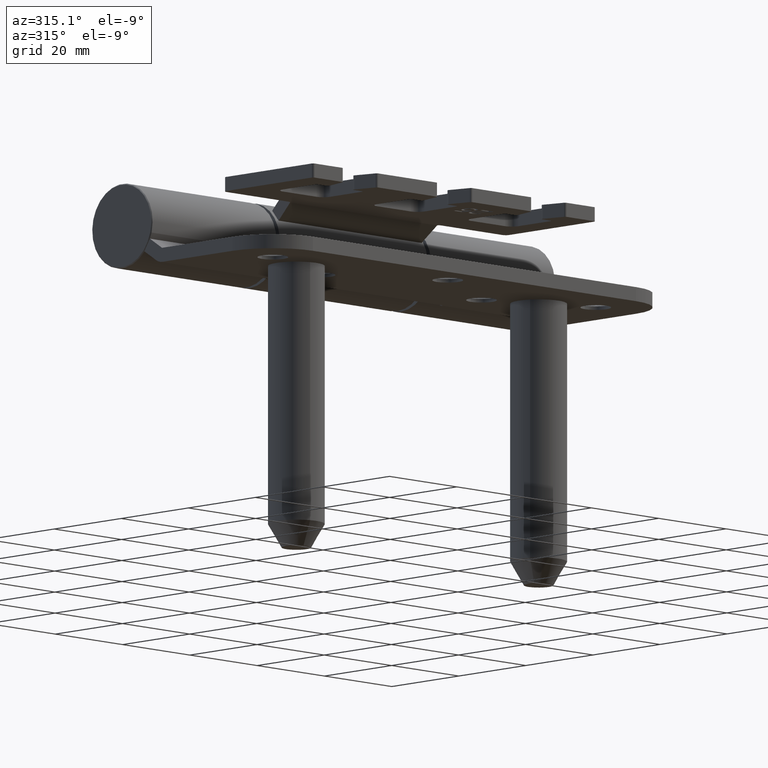
[diagram: clean part render]
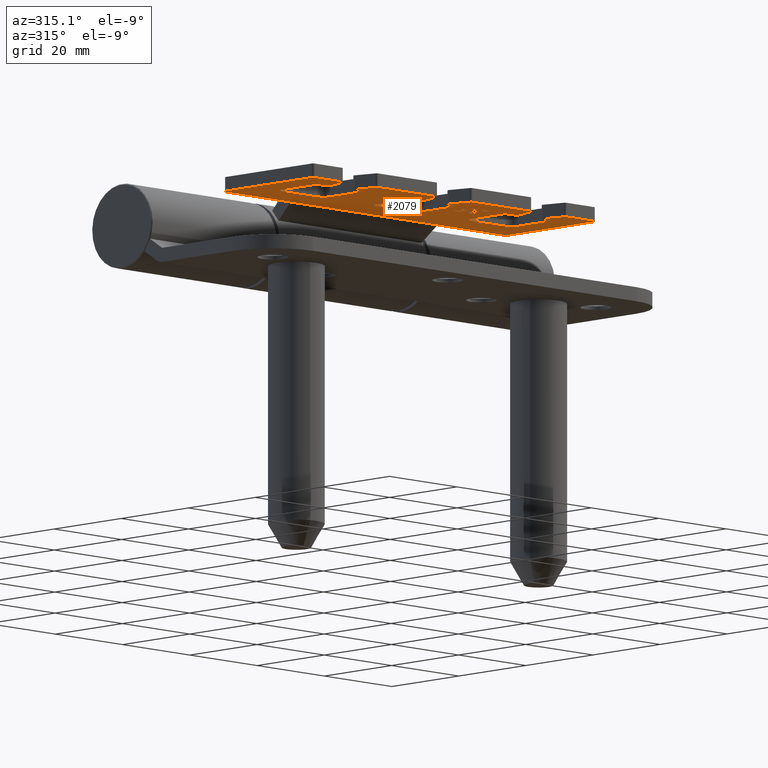
[diagram: same view with one face highlighted and labeled with its STEP entity id]
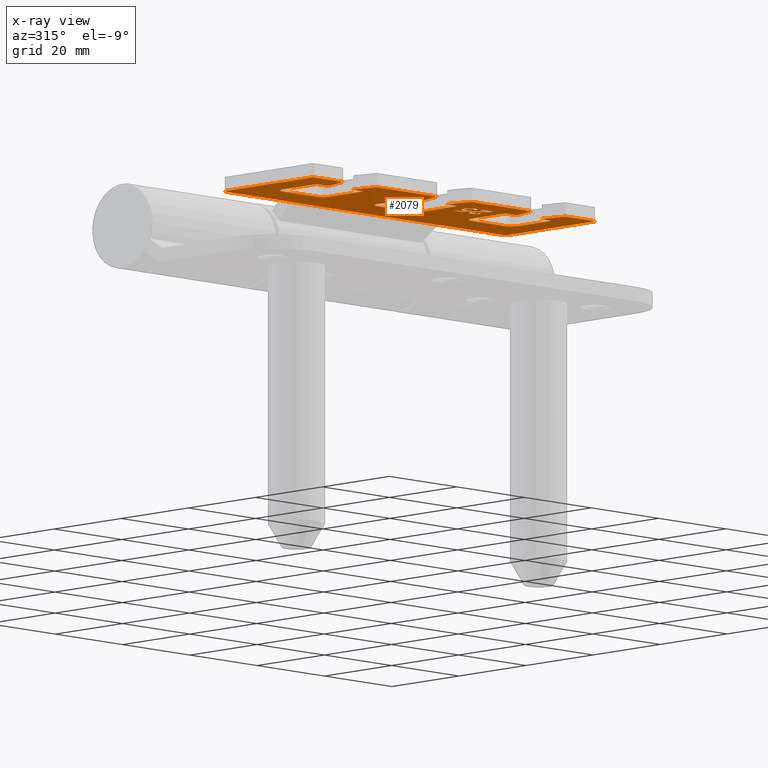
[diagram: x-ray of the same camera — body ghosted, the highlighted face saturated]
A machine part, auxiliary view. The second image highlights one B-rep face of the part: STEP entity #2079.
The next image is the same camera in x-ray: the body ghosted, the highlighted face saturated — about 0% of this face is hidden behind the body in this view.
In plain terms, the highlighted planar face has unit normal (-0, 0, -1).
Its self-contained STEP definition (entity closure, byte-faithful):
#13 = EDGE_CURVE ( 'NONE', #3798, #17745, #6001, .T. ) ;
#21 = CARTESIAN_POINT ( 'NONE',  ( -29.47435897435896700, -7.999999999999998200, -16.94871794871793100 ) ) ;
#29 = EDGE_CURVE ( 'NONE', #1265, #11754, #11586, .T. ) ;
#36 = CARTESIAN_POINT ( 'NONE',  ( -30.41276396107699400, -7.999999999999998200, -15.64334872614905200 ) ) ;
#45 = DIRECTION ( 'NONE',  ( 0.09950371902100291200, 0.0000000000000000000, 0.9950371902099887100 ) ) ;
#52 = VECTOR ( 'NONE', #16476, 1000.000000000000000 ) ;
#62 = ORIENTED_EDGE ( 'NONE', *, *, #16048, .F. ) ;
#89 = AXIS2_PLACEMENT_3D ( 'NONE', #14287, #14037, #16892 ) ;
#99 = CARTESIAN_POINT ( 'NONE',  ( -30.19293630423625900, -7.999999999999996400, -15.44009011978449300 ) ) ;
#120 = VERTEX_POINT ( 'NONE', #17749 ) ;
#128 = CARTESIAN_POINT ( 'NONE',  ( -29.85323912002101900, -8.000000000000000000, -12.61997240337114700 ) ) ;
#134 = CARTESIAN_POINT ( 'NONE',  ( -28.75803294109141800, -7.999999999999998200, -16.62142796201532500 ) ) ;
#161 = EDGE_CURVE ( 'NONE', #4018, #8008, #8801, .T. ) ;
#193 = CARTESIAN_POINT ( 'NONE',  ( -30.24470424939988400, -7.999999999999996400, -12.07890063599212000 ) ) ;
#232 = CARTESIAN_POINT ( 'NONE',  ( -32.55528846153846000, -8.000000000000000000, -17.58673878205127000 ) ) ;
#244 = AXIS2_PLACEMENT_3D ( 'NONE', #17239, #9023, #10409 ) ;
#255 = CARTESIAN_POINT ( 'NONE',  ( -31.28255715871698700, -8.000000000000000000, -11.11612048247084600 ) ) ;
#275 = CARTESIAN_POINT ( 'NONE',  ( -29.82268380148822800, -7.999999999999996400, -15.19554859725371200 ) ) ;
#317 = CARTESIAN_POINT ( 'NONE',  ( -29.37357390280477500, -7.999999999999998200, -16.94521136761745700 ) ) ;
#343 = CARTESIAN_POINT ( 'NONE',  ( -29.38020833333333200, -8.000000000000000000, -14.44871794871793600 ) ) ;
#345 = CARTESIAN_POINT ( 'NONE',  ( -21.35294117647065400, -8.000000000000001800, 27.41176470588234100 ) ) ;
#379 = CARTESIAN_POINT ( 'NONE',  ( -28.66863022414434800, -7.999999999999996400, -16.47004467049641000 ) ) ;
#381 = CARTESIAN_POINT ( 'NONE',  ( -30.78030005418602900, -7.999999999999996400, -11.21263284888995700 ) ) ;
#383 = AXIS2_PLACEMENT_3D ( 'NONE', #7658, #3591, #13186 ) ;
#401 = VERTEX_POINT ( 'NONE', #10728 ) ;
#409 = DIRECTION ( 'NONE',  ( -0.0000000000000000000, -1.000000000000000000, -1.402666919856384600E-045 ) ) ;
#421 = CARTESIAN_POINT ( 'NONE',  ( -28.36006733496736800, -8.000000000000001800, -17.10918942818107900 ) ) ;
#424 = CARTESIAN_POINT ( 'NONE',  ( -28.75458690455984400, -7.999999999999998200, -15.40604548773712600 ) ) ;
#437 = CARTESIAN_POINT ( 'NONE',  ( -30.36143851533694600, -7.999999999999996400, -10.71157451280752000 ) ) ;
#462 = LINE ( 'NONE', #9231, #1967 ) ;
#486 = CARTESIAN_POINT ( 'NONE',  ( -31.28525641025640200, -7.999999999999998200, -10.47435897435895700 ) ) ;
#538 = ORIENTED_EDGE ( 'NONE', *, *, #2837, .T. ) ;
#543 = CARTESIAN_POINT ( 'NONE',  ( -32.48445775863236700, -7.999999999999998200, -12.00935439888613800 ) ) ;
#560 = ORIENTED_EDGE ( 'NONE', *, *, #2261, .F. ) ;
#569 = CIRCLE ( 'NONE', #3681, 0.5000000000000004400 ) ;
#599 = CARTESIAN_POINT ( 'NONE',  ( -31.68785508642259100, -7.999999999999996400, -11.15173141657995800 ) ) ;
#602 = CARTESIAN_POINT ( 'NONE',  ( -29.42969337469607200, -8.000000000000000000, -14.45006984022967700 ) ) ;
#613 = CARTESIAN_POINT ( 'NONE',  ( -29.66666666666666400, -8.000000000000000000, -11.94170673076921400 ) ) ;
#617 = CARTESIAN_POINT ( 'NONE',  ( -32.35897435897435800, -7.999999999999998200, -16.83052884615383200 ) ) ;
#651 = CARTESIAN_POINT ( 'NONE',  ( -33.62126781251815500, -7.999999999999998200, 3.655316953129549100 ) ) ;
#661 = CARTESIAN_POINT ( 'NONE',  ( -31.99652079988486600, -8.000000000000001800, -11.26470207285920300 ) ) ;
#663 = CARTESIAN_POINT ( 'NONE',  ( -31.30329295722367900, -8.000000000000000000, -15.68578537311858600 ) ) ;
#677 = CARTESIAN_POINT ( 'NONE',  ( -12.18030679136777300, -7.999999999999998200, 22.89199802964732600 ) ) ;
#687 = B_SPLINE_CURVE_WITH_KNOTS ( 'NONE', 3,
 ( #909, #14535, #10270, #790, #15792, #2226, #17155 ),
 .UNSPECIFIED., .F., .F.,
 ( 4, 1, 1, 1, 4 ),
 ( 0.0000000000000000000, 0.2526433275832421500, 0.5044398525799811400, 0.7504068042814622300, 1.000000000000000000 ),
 .UNSPECIFIED. ) ;
#696 = CARTESIAN_POINT ( 'NONE',  ( -32.49999999999997900, -7.999999999999998200, 21.00000000000001800 ) ) ;
#710 = ORIENTED_EDGE ( 'NONE', *, *, #4060, .T. ) ;
#730 = DIRECTION ( 'NONE',  ( 0.9701425001453322100, 0.0000000000000000000, -0.2425356250363319400 ) ) ;
#746 = ORIENTED_EDGE ( 'NONE', *, *, #13016, .T. ) ;
#752 = CARTESIAN_POINT ( 'NONE',  ( -32.99999999999999300, -7.999999999999998200, -23.85961179679777500 ) ) ;
#772 = ORIENTED_EDGE ( 'NONE', *, *, #11048, .T. ) ;
#785 = CARTESIAN_POINT ( 'NONE',  ( -28.06410256410255900, -7.999999999999998200, -13.10256410256408400 ) ) ;
#790 = CARTESIAN_POINT ( 'NONE',  ( -32.77333376119280900, -7.999999999999998200, -17.64117475120493200 ) ) ;
#798 = CARTESIAN_POINT ( 'NONE',  ( -31.46714295190265900, -7.999999999999996400, -15.87973245772782800 ) ) ;
#810 = EDGE_CURVE ( 'NONE', #12451, #5811, #17076, .T. ) ;
#821 = CARTESIAN_POINT ( 'NONE',  ( -31.65384615384615000, -7.999999999999998200, -13.67948717948715900 ) ) ;
#834 = ORIENTED_EDGE ( 'NONE', *, *, #5228, .F. ) ;
#846 = CARTESIAN_POINT ( 'NONE',  ( -32.99999999999999300, -7.999999999999998200, 6.500000000000005300 ) ) ;
#857 = DIRECTION ( 'NONE',  ( 0.0000000000000000000, 1.000000000000000000, 1.402666919856384600E-045 ) ) ;
#903 = ORIENTED_EDGE ( 'NONE', *, *, #810, .T. ) ;
#909 = CARTESIAN_POINT ( 'NONE',  ( -32.99999999999999300, -7.999999999999998200, -17.65384615384613900 ) ) ;
#926 = DIRECTION ( 'NONE',  ( 0.0000000000000000000, 0.0000000000000000000, 1.000000000000000000 ) ) ;
#961 = DIRECTION ( 'NONE',  ( 1.000000000000000000, 0.0000000000000000000, 1.026341648675405700E-048 ) ) ;
#980 = VERTEX_POINT ( 'NONE', #8086 ) ;
#996 = CIRCLE ( 'NONE', #10599, 0.5000000000000004400 ) ;
#1007 = CARTESIAN_POINT ( 'NONE',  ( -33.49999999999998600, -7.999999999999998200, 32.14038820320222800 ) ) ;
#1024 = DIRECTION ( 'NONE',  ( 0.0000000000000000000, 0.0000000000000000000, 1.000000000000000000 ) ) ;
#1040 = VERTEX_POINT ( 'NONE', #6765 ) ;
#1048 = CARTESIAN_POINT ( 'NONE',  ( -13.18030679136777600, -7.999999999999998200, 41.00000000000000000 ) ) ;
#1099 = CARTESIAN_POINT ( 'NONE',  ( -29.09924347804939900, -8.000000000000000000, -14.47282667948791300 ) ) ;
#1117 = CARTESIAN_POINT ( 'NONE',  ( -31.43149038461538000, -7.999999999999998200, -15.83593749999998400 ) ) ;
#1120 = CARTESIAN_POINT ( 'NONE',  ( -30.24358974358974100, -7.999999999999998200, -12.11899038461536500 ) ) ;
#1121 = DIRECTION ( 'NONE',  ( 1.000000000000000000, 0.0000000000000000000, 1.026341648675405900E-048 ) ) ;
#1135 = DIRECTION ( 'NONE',  ( -0.0000000000000000000, -1.000000000000000000, -1.402666919856384600E-045 ) ) ;
#1142 = CARTESIAN_POINT ( 'NONE',  ( -32.49999999999998600, -7.999999999999998200, 35.00000000000001400 ) ) ;
#1154 = VECTOR ( 'NONE', #6486, 999.9999999999998900 ) ;
#1172 = CIRCLE ( 'NONE', #244, 1.999999999999994900 ) ;
#1176 = CARTESIAN_POINT ( 'NONE',  ( -30.69230769230768600, -7.999999999999998200, -12.97435897435895700 ) ) ;
#1180 = AXIS2_PLACEMENT_3D ( 'NONE', #5499, #6784, #2838 ) ;
#1208 = EDGE_CURVE ( 'NONE', #9519, #17745, #17286, .T. ) ;
#1222 = CARTESIAN_POINT ( 'NONE',  ( -39.00000000000000000, -7.999999999999998200, -34.99999999999998600 ) ) ;
#1265 = VERTEX_POINT ( 'NONE', #12693 ) ;
#1273 = DIRECTION ( 'NONE',  ( 0.0000000000000000000, 1.000000000000000000, 1.402666919856384600E-045 ) ) ;
#1337 = CARTESIAN_POINT ( 'NONE',  ( -32.72446536705295700, -8.000000000000000000, -11.10728588093941800 ) ) ;
#1358 = EDGE_CURVE ( 'NONE', #17001, #7517, #17265, .T. ) ;
#1361 = VECTOR ( 'NONE', #6908, 1000.000000000000000 ) ;
#1373 = DIRECTION ( 'NONE',  ( 0.0000000000000000000, 1.000000000000000000, 1.402666919856384600E-045 ) ) ;
#1397 = CARTESIAN_POINT ( 'NONE',  ( -33.06410256410256200, -7.999999999999996400, -12.12600160256408400 ) ) ;
#1524 = AXIS2_PLACEMENT_3D ( 'NONE', #9422, #1373, #6700 ) ;
#1530 = CARTESIAN_POINT ( 'NONE',  ( -31.08761256005970700, -7.999999999999996400, -11.12962077480178100 ) ) ;
#1539 = CARTESIAN_POINT ( 'NONE',  ( -28.57692307692307300, -7.999999999999998200, -16.00120192307690600 ) ) ;
#1574 = CARTESIAN_POINT ( 'NONE',  ( -38.99999999999998600, -7.999999999999998200, 35.00000000000001400 ) ) ;
#1576 = CARTESIAN_POINT ( 'NONE',  ( -29.14460104414312300, -7.999999999999996400, -15.12279673580849200 ) ) ;
#1591 = CARTESIAN_POINT ( 'NONE',  ( -31.80789038131200300, -8.000000000000000000, -13.66238168176661500 ) ) ;
#1650 = DIRECTION ( 'NONE',  ( 0.0000000000000000000, 0.0000000000000000000, 1.000000000000000000 ) ) ;
#1655 = ORIENTED_EDGE ( 'NONE', *, *, #10157, .F. ) ;
#1657 = CARTESIAN_POINT ( 'NONE',  ( -28.57772268288900000, -7.999999999999998200, -16.03595631785517700 ) ) ;
#1678 = CARTESIAN_POINT ( 'NONE',  ( -29.55854590726929100, -7.999999999999998200, -15.10591191174414900 ) ) ;
#1716 = DIRECTION ( 'NONE',  ( 0.0000000000000000000, 0.0000000000000000000, 1.000000000000000000 ) ) ;
#1749 = EDGE_CURVE ( 'NONE', #8008, #14146, #11559, .T. ) ;
#1759 = CARTESIAN_POINT ( 'NONE',  ( -28.20123852969946700, -7.999999999999998200, -16.88209855984302600 ) ) ;
#1763 = CARTESIAN_POINT ( 'NONE',  ( -29.38020833333333200, -8.000000000000000000, -14.44871794871793600 ) ) ;
#1774 = CARTESIAN_POINT ( 'NONE',  ( -30.11900871611295100, -7.999999999999996400, -10.89696490905011900 ) ) ;
#1776 = CARTESIAN_POINT ( 'NONE',  ( -30.53201698947346500, -8.000000000000000000, -11.36715265043242900 ) ) ;
#1790 = CARTESIAN_POINT ( 'NONE',  ( -33.49999999999999300, -7.999999999999998200, -32.14038820320218500 ) ) ;
#1815 = ORIENTED_EDGE ( 'NONE', *, *, #11544, .F. ) ;
#1818 = CARTESIAN_POINT ( 'NONE',  ( -28.70833313155819900, -7.999999999999998200, -15.47802468616766600 ) ) ;
#1830 = CARTESIAN_POINT ( 'NONE',  ( -33.49999999999999300, -7.999999999999998200, -4.140388203202184600 ) ) ;
#1844 = CARTESIAN_POINT ( 'NONE',  ( -38.50000000000000000, -8.000000000000001800, 42.00000000000000000 ) ) ;
#1847 = ORIENTED_EDGE ( 'NONE', *, *, #16346, .T. ) ;
#1874 = CARTESIAN_POINT ( 'NONE',  ( -28.45456909811033300, -7.999999999999996400, -17.20901120485546100 ) ) ;
#1888 = CARTESIAN_POINT ( 'NONE',  ( -31.11343962867247400, -7.999999999999998200, -10.47832277126347300 ) ) ;
#1935 = CARTESIAN_POINT ( 'NONE',  ( -20.99999999999999600, -7.999999999999998200, -4.999999999999992900 ) ) ;
#1954 = VECTOR ( 'NONE', #2485, 1000.000000000000000 ) ;
#1963 = VERTEX_POINT ( 'NONE', #6509 ) ;
#1967 = VECTOR ( 'NONE', #11979, 1000.000000000000000 ) ;
#1971 = DIRECTION ( 'NONE',  ( 8.673617379884034200E-017, 2.736911063134408300E-048, 1.000000000000000000 ) ) ;
#1983 = ORIENTED_EDGE ( 'NONE', *, *, #13963, .T. ) ;
#1991 = CARTESIAN_POINT ( 'NONE',  ( -32.30866916435543600, -8.000000000000000000, -11.52988496455677000 ) ) ;
#1994 = CARTESIAN_POINT ( 'NONE',  ( -29.52877266250523300, -8.000000000000003600, -14.45277660664817200 ) ) ;
#2005 = CARTESIAN_POINT ( 'NONE',  ( -30.94692888850672600, -7.999999999999998200, -10.49900557415207000 ) ) ;
#2006 = CARTESIAN_POINT ( 'NONE',  ( -38.50000000000000000, -8.000000000000001800, -33.39038820320219300 ) ) ;
#2009 = CARTESIAN_POINT ( 'NONE',  ( -30.24358974358974100, -7.999999999999998200, -12.11899038461536500 ) ) ;
#2058 = CARTESIAN_POINT ( 'NONE',  ( -32.24505376507862300, -7.999999999999998200, -11.45161766620974200 ) ) ;
#2079 = ADVANCED_FACE ( 'NONE', ( #2681, #13164, #8228 ), #2761, .T. ) ;
#2092 = B_SPLINE_CURVE_WITH_KNOTS ( 'NONE', 3,
 ( #14130, #5888, #12841, #8647, #4490, #7268, #3371, #11522, #11403, #7441, #15561 ),
 .UNSPECIFIED., .F., .F.,
 ( 4, 1, 1, 1, 1, 1, 1, 1, 4 ),
 ( 0.0000000000000000000, 0.1324702944791600900, 0.2616666311771870800, 0.3875720710229662600, 0.5110290449571821500, 0.6326513119273601300, 0.7546442917994753400, 0.8765146957733891400, 0.9999999999999998900 ),
 .UNSPECIFIED. ) ;
#2138 = EDGE_CURVE ( 'NONE', #3092, #2519, #15954, .T. ) ;
#2165 = B_SPLINE_CURVE_WITH_KNOTS ( 'NONE', 3,
 ( #16848, #7190, #16610, #3063, #1576, #8393, #8632, #12646, #15246, #15307, #424, #1818, #7250, #9894, #10013, #11279, #12529, #8574, #4299 ),
 .UNSPECIFIED., .F., .F.,
 ( 4, 1, 1, 1, 1, 1, 1, 1, 1, 1, 1, 1, 1, 1, 1, 1, 4 ),
 ( 0.0000000000000000000, 0.06176375901380547200, 0.1211771361726256700, 0.1794260614099178200, 0.2368495788881553600, 0.2943294307659544100, 0.3532001253423287000, 0.4127314132961738500, 0.4745344608485064800, 0.5370706765713612100, 0.5996068922942169300, 0.6623841626057254100, 0.7259427899166660500, 0.7903110064740479500, 0.8577206100105787500, 0.9272300646158239100, 1.000000000000000000 ),
 .UNSPECIFIED. ) ;
#2169 = CARTESIAN_POINT ( 'NONE',  ( -38.50000000000000000, -8.000000000000001800, 22.60961179679782200 ) ) ;
#2178 = VECTOR ( 'NONE', #9141, 1000.000000000000000 ) ;
#2186 = DIRECTION ( 'NONE',  ( -0.9812462574000521100, 0.0000000000000000000, -0.1927583521884092500 ) ) ;
#2213 = DIRECTION ( 'NONE',  ( -0.9701425001453322100, 3.944304526105058600E-031, -0.2425356250363319400 ) ) ;
#2226 = CARTESIAN_POINT ( 'NONE',  ( -32.59114130599011400, -8.000000000000000000, -17.59821967954060500 ) ) ;
#2261 = EDGE_CURVE ( 'NONE', #2501, #9931, #9987, .T. ) ;
#2282 = VERTEX_POINT ( 'NONE', #15949 ) ;
#2297 = VERTEX_POINT ( 'NONE', #14215 ) ;
#2300 = LINE ( 'NONE', #10108, #14770 ) ;
#2344 = CARTESIAN_POINT ( 'NONE',  ( -39.00000000000000000, -7.999999999999998200, 42.00000000000000000 ) ) ;
#2366 = VERTEX_POINT ( 'NONE', #17434 ) ;
#2436 = CARTESIAN_POINT ( 'NONE',  ( -38.50000000000000000, -8.000000000000001800, -41.50000000000000000 ) ) ;
#2442 = VERTEX_POINT ( 'NONE', #16465 ) ;
#2459 = VERTEX_POINT ( 'NONE', #8246 ) ;
#2485 = DIRECTION ( 'NONE',  ( 1.026341648675172500E-048, 1.401298464324817100E-045, 1.000000000000000000 ) ) ;
#2491 = DIRECTION ( 'NONE',  ( 1.026341648675172500E-048, 1.401298464324817100E-045, 1.000000000000000000 ) ) ;
#2501 = VERTEX_POINT ( 'NONE', #16355 ) ;
#2519 = VERTEX_POINT ( 'NONE', #9568 ) ;
#2532 = DIRECTION ( 'NONE',  ( -2.877826455228648000E-093, 1.000000000000000000, -1.401298464324817100E-045 ) ) ;
#2564 = VERTEX_POINT ( 'NONE', #7150 ) ;
#2570 = CARTESIAN_POINT ( 'NONE',  ( -30.24796574974073600, -7.999999999999996400, -12.26474656507636100 ) ) ;
#2579 = LINE ( 'NONE', #1222, #13505 ) ;
#2581 = LINE ( 'NONE', #4250, #16088 ) ;
#2583 = EDGE_CURVE ( 'NONE', #6203, #2920, #14041, .T. ) ;
#2598 = VECTOR ( 'NONE', #17685, 1000.000000000000000 ) ;
#2613 = EDGE_CURVE ( 'NONE', #11399, #2442, #6501, .T. ) ;
#2625 = CARTESIAN_POINT ( 'NONE',  ( -30.30961232528547800, -7.999999999999996400, -12.52711703789202100 ) ) ;
#2657 = CARTESIAN_POINT ( 'NONE',  ( -32.99999999999999300, -7.999999999999998200, -14.38461538461536900 ) ) ;
#2681 = FACE_OUTER_BOUND ( 'NONE', #13780, .T. ) ;
#2693 = VERTEX_POINT ( 'NONE', #16995 ) ;
#2696 = VECTOR ( 'NONE', #7526, 1000.000000000000000 ) ;
#2759 = DIRECTION ( 'NONE',  ( -1.026341648675172500E-048, -1.401298464324817100E-045, -1.000000000000000000 ) ) ;
#2761 = PLANE ( 'NONE',  #6543 ) ;
#2787 = VERTEX_POINT ( 'NONE', #15869 ) ;
#2788 = AXIS2_PLACEMENT_3D ( 'NONE', #3426, #6119, #14249 ) ;
#2802 = CARTESIAN_POINT ( 'NONE',  ( -32.13581723205725600, -8.000000000000000000, -12.84632787830276800 ) ) ;
#2809 = EDGE_CURVE ( 'NONE', #16756, #14850, #10153, .T. ) ;
#2812 = LINE ( 'NONE', #13611, #5794 ) ;
#2816 = CARTESIAN_POINT ( 'NONE',  ( -30.97158825379240800, -7.999999999999998200, -16.24567655875546300 ) ) ;
#2824 = ORIENTED_EDGE ( 'NONE', *, *, #12153, .T. ) ;
#2837 = EDGE_CURVE ( 'NONE', #13697, #15855, #4985, .T. ) ;
#2838 = DIRECTION ( 'NONE',  ( 0.0000000000000000000, 0.0000000000000000000, 1.000000000000000000 ) ) ;
#2853 = CARTESIAN_POINT ( 'NONE',  ( -32.06112363942173000, -7.999999999999998200, -12.89054501359466400 ) ) ;
#2872 = CARTESIAN_POINT ( 'NONE',  ( -30.29760513007655800, -7.999999999999998200, -15.53406536949836100 ) ) ;
#2899 = CARTESIAN_POINT ( 'NONE',  ( -29.68640152829888400, -8.000000000000000000, -12.17296478569369700 ) ) ;
#2904 = CARTESIAN_POINT ( 'NONE',  ( -33.06301101071603200, -8.000000000000000000, -12.17980866830898600 ) ) ;
#2914 = CARTESIAN_POINT ( 'NONE',  ( -30.59565812191139900, -8.000000000000001800, -12.90790451793925100 ) ) ;
#2920 = VERTEX_POINT ( 'NONE', #6470 ) ;
#2935 = EDGE_CURVE ( 'NONE', #5078, #3687, #8480, .T. ) ;
#2961 = CARTESIAN_POINT ( 'NONE',  ( -28.57692307692307300, -7.999999999999998200, -16.00120192307690600 ) ) ;
#2989 = DIRECTION ( 'NONE',  ( 0.0000000000000000000, 1.000000000000000000, 1.402666919856384600E-045 ) ) ;
#3023 = EDGE_CURVE ( 'NONE', #16376, #120, #7531, .T. ) ;
#3026 = CARTESIAN_POINT ( 'NONE',  ( -28.59063825161517200, -7.999999999999996400, -16.20340648106709800 ) ) ;
#3058 = CARTESIAN_POINT ( 'NONE',  ( -32.20501435377103400, -8.000000000000000000, -17.43501014874914300 ) ) ;
#3063 = CARTESIAN_POINT ( 'NONE',  ( -29.22230198453506100, -8.000000000000000000, -15.10476103859743800 ) ) ;
#3081 = CARTESIAN_POINT ( 'NONE',  ( -29.47435897435896700, -7.999999999999998200, -16.94871794871793100 ) ) ;
#3082 = CARTESIAN_POINT ( 'NONE',  ( -30.69056082817639500, -8.000000000000000000, -11.25569878296097800 ) ) ;
#3092 = VERTEX_POINT ( 'NONE', #6779 ) ;
#3124 = DIRECTION ( 'NONE',  ( -0.9701425001453322100, 3.944304526105058600E-031, -0.2425356250363319400 ) ) ;
#3149 = CARTESIAN_POINT ( 'NONE',  ( -33.49999999999999300, -7.999999999999998200, -32.14038820320218500 ) ) ;
#3152 = CARTESIAN_POINT ( 'NONE',  ( -38.50000000000000000, -8.000000000000001800, 41.50000000000000000 ) ) ;
#3192 = EDGE_CURVE ( 'NONE', #2519, #4121, #2165, .T. ) ;
#3193 = DIRECTION ( 'NONE',  ( 0.0000000000000000000, 1.000000000000000000, 1.402666919856384600E-045 ) ) ;
#3197 = AXIS2_PLACEMENT_3D ( 'NONE', #10462, #15938, #17420 ) ;
#3206 = DIRECTION ( 'NONE',  ( 0.0000000000000000000, 1.000000000000000000, 1.402666919856384600E-045 ) ) ;
#3235 = CARTESIAN_POINT ( 'NONE',  ( -28.04854958775312200, -7.999999999999998200, -16.47334232017195900 ) ) ;
#3238 = CARTESIAN_POINT ( 'NONE',  ( -31.90010266152053100, -8.000000000000000000, -11.21884550673490600 ) ) ;
#3316 = CARTESIAN_POINT ( 'NONE',  ( -31.63369606312316100, -7.999999999999998200, -16.08204269445497300 ) ) ;
#3318 = CARTESIAN_POINT ( 'NONE',  ( -28.09617778054332900, -8.000000000000000000, -15.35158758611159900 ) ) ;
#3321 = CARTESIAN_POINT ( 'NONE',  ( -39.00000000000000000, -7.999999999999998200, 41.50000000000000000 ) ) ;
#3356 = EDGE_CURVE ( 'NONE', #16883, #6480, #15163, .T. ) ;
#3358 = CARTESIAN_POINT ( 'NONE',  ( -31.79740964023130400, -8.000000000000000000, -11.18023929019309300 ) ) ;
#3371 = CARTESIAN_POINT ( 'NONE',  ( -32.06166252031233900, -7.999999999999996400, -10.62127213933985500 ) ) ;
#3394 = ORIENTED_EDGE ( 'NONE', *, *, #4611, .T. ) ;
#3395 = EDGE_CURVE ( 'NONE', #14146, #5593, #10313, .T. ) ;
#3399 = EDGE_CURVE ( 'NONE', #13813, #6612, #996, .T. ) ;
#3400 = DIRECTION ( 'NONE',  ( 1.026341648675172500E-048, 1.401298464324817100E-045, 1.000000000000000000 ) ) ;
#3419 = CARTESIAN_POINT ( 'NONE',  ( -32.45713141025640900, -7.999999999999998200, -10.85697115384613600 ) ) ;
#3426 = CARTESIAN_POINT ( 'NONE',  ( -22.99999999999998900, -8.000000000000001800, -32.99999999999999300 ) ) ;
#3432 = CIRCLE ( 'NONE', #16719, 0.5000000000000004400 ) ;
#3459 = CARTESIAN_POINT ( 'NONE',  ( -32.49999999999999300, -7.999999999999998200, -6.999999999999982200 ) ) ;
#3484 = CARTESIAN_POINT ( 'NONE',  ( -31.87487822887655000, -8.000000000000000000, -16.36806709264784500 ) ) ;
#3512 = CARTESIAN_POINT ( 'NONE',  ( -12.18030679136777500, -7.999999999999998200, 42.00000000000000000 ) ) ;
#3562 = B_SPLINE_CURVE_WITH_KNOTS ( 'NONE', 3,
 ( #232, #4526, #13935, #3058, #12702, #14047, #5924, #12520, #15302, #4292, #16661, #9829, #12583, #4698, #4641 ),
 .UNSPECIFIED., .F., .F.,
 ( 4, 1, 1, 1, 1, 1, 1, 1, 1, 1, 1, 1, 4 ),
 ( 0.0000000000000000000, 0.1003958053692366500, 0.2044223945985638200, 0.3109890257635843900, 0.4224687447083747000, 0.4810013788192103500, 0.5432032916293425600, 0.6094696992077599500, 0.6795301504461721500, 0.7538224337262109400, 0.8316278262887669700, 0.9138061284747212000, 1.000000000000000000 ),
 .UNSPECIFIED. ) ;
#3569 = EDGE_LOOP ( 'NONE', ( #14999, #9770, #17436, #13332, #8638, #16815, #5115, #15658, #16777, #4574, #15099, #746, #12977 ) ) ;
#3591 = DIRECTION ( 'NONE',  ( 0.0000000000000000000, 1.000000000000000000, 1.402666919856384600E-045 ) ) ;
#3614 = CARTESIAN_POINT ( 'NONE',  ( -38.99999999999999300, -7.999999999999998200, 33.39038820320222800 ) ) ;
#3622 = DIRECTION ( 'NONE',  ( 0.0000000000000000000, 1.000000000000000000, 1.402666919856384600E-045 ) ) ;
#3650 = VECTOR ( 'NONE', #45, 1000.000000000000200 ) ;
#3654 = VERTEX_POINT ( 'NONE', #17684 ) ;
#3662 = CARTESIAN_POINT ( 'NONE',  ( -28.30147476740653500, -7.999999999999998200, -14.96866095345992100 ) ) ;
#3677 = AXIS2_PLACEMENT_3D ( 'NONE', #7216, #3206, #8658 ) ;
#3681 = AXIS2_PLACEMENT_3D ( 'NONE', #13199, #857, #14661 ) ;
#3687 = VERTEX_POINT ( 'NONE', #16579 ) ;
#3709 = EDGE_CURVE ( 'NONE', #15774, #15659, #4582, .T. ) ;
#3760 = EDGE_CURVE ( 'NONE', #4097, #6203, #6092, .T. ) ;
#3761 = ORIENTED_EDGE ( 'NONE', *, *, #16500, .F. ) ;
#3783 = VERTEX_POINT ( 'NONE', #14214 ) ;
#3798 = VERTEX_POINT ( 'NONE', #11372 ) ;
#3808 = ORIENTED_EDGE ( 'NONE', *, *, #7858, .T. ) ;
#3848 = DIRECTION ( 'NONE',  ( 1.026341648675172500E-048, 1.401298464324817100E-045, 1.000000000000000000 ) ) ;
#3864 = EDGE_CURVE ( 'NONE', #16883, #15998, #5878, .T. ) ;
#3912 = CARTESIAN_POINT ( 'NONE',  ( -30.24508613076977800, -7.999999999999998200, -12.16883210611353400 ) ) ;
#4018 = VERTEX_POINT ( 'NONE', #821 ) ;
#4027 = CARTESIAN_POINT ( 'NONE',  ( -39.00000000000000000, -7.999999999999998200, 42.00000000000000000 ) ) ;
#4039 = CARTESIAN_POINT ( 'NONE',  ( -38.50000000000000000, -8.000000000000001800, -5.390388203202173000 ) ) ;
#4060 = EDGE_CURVE ( 'NONE', #15525, #3654, #10664, .T. ) ;
#4063 = DIRECTION ( 'NONE',  ( 1.000000000000000000, 0.0000000000000000000, 1.026341648675405900E-048 ) ) ;
#4076 = DIRECTION ( 'NONE',  ( -1.000000000000000000, -0.0000000000000000000, -1.026341648675405900E-048 ) ) ;
#4078 = CARTESIAN_POINT ( 'NONE',  ( -29.79605147277794700, -7.999999999999998200, -12.51026739070580600 ) ) ;
#4097 = VERTEX_POINT ( 'NONE', #5702 ) ;
#4111 = CARTESIAN_POINT ( 'NONE',  ( -20.99999999999999600, -7.999999999999998200, -22.99999999999998600 ) ) ;
#4121 = VERTEX_POINT ( 'NONE', #1539 ) ;
#4157 = VERTEX_POINT ( 'NONE', #1844 ) ;
#4163 = VECTOR ( 'NONE', #2759, 1000.000000000000000 ) ;
#4181 = LINE ( 'NONE', #8686, #11059 ) ;
#4196 = VERTEX_POINT ( 'NONE', #11469 ) ;
#4198 = CIRCLE ( 'NONE', #2788, 1.999999999999994900 ) ;
#4205 = CARTESIAN_POINT ( 'NONE',  ( -30.31337409107001000, -7.999999999999998200, -11.68347916527712000 ) ) ;
#4210 = CARTESIAN_POINT ( 'NONE',  ( -31.98037429073006500, -8.000000000000000000, -12.93135424035053300 ) ) ;
#4219 = ORIENTED_EDGE ( 'NONE', *, *, #14558, .T. ) ;
#4223 = CARTESIAN_POINT ( 'NONE',  ( -29.38621794871794500, -7.999999999999998200, -15.08974358974357500 ) ) ;
#4249 = CARTESIAN_POINT ( 'NONE',  ( -29.66751956966084700, -7.999999999999998200, -11.98049628299986600 ) ) ;
#4250 = CARTESIAN_POINT ( 'NONE',  ( -39.00000000000000000, -7.999999999999998200, 42.00000000000000000 ) ) ;
#4279 = CARTESIAN_POINT ( 'NONE',  ( -39.00000000000000000, -7.999999999999998200, -41.49999999999997200 ) ) ;
#4292 = CARTESIAN_POINT ( 'NONE',  ( -31.51641984055393700, -8.000000000000000000, -16.88409821350671100 ) ) ;
#4298 = ORIENTED_EDGE ( 'NONE', *, *, #9937, .F. ) ;
#4299 = CARTESIAN_POINT ( 'NONE',  ( -28.57692307692307300, -7.999999999999998200, -16.00120192307690600 ) ) ;
#4321 = VERTEX_POINT ( 'NONE', #3321 ) ;
#4371 = CARTESIAN_POINT ( 'NONE',  ( -31.70573262705104900, -7.999999999999996400, -13.67372556177688200 ) ) ;
#4372 = CARTESIAN_POINT ( 'NONE',  ( -28.87569552590387900, -7.999999999999996400, -16.74966175761668900 ) ) ;
#4379 = EDGE_CURVE ( 'NONE', #2693, #3687, #9445, .T. ) ;
#4392 = DIRECTION ( 'NONE',  ( 0.0000000000000000000, 0.0000000000000000000, 1.000000000000000000 ) ) ;
#4398 = CARTESIAN_POINT ( 'NONE',  ( -30.81686184839966100, -7.999999999999996400, -16.07073556043145100 ) ) ;
#4430 = CARTESIAN_POINT ( 'NONE',  ( -28.63430307796872000, -8.000000000000000000, -16.38669939596448100 ) ) ;
#4433 = DIRECTION ( 'NONE',  ( -0.0000000000000000000, -1.000000000000000000, -1.402666919856384600E-045 ) ) ;
#4465 = VECTOR ( 'NONE', #13776, 1000.000000000000000 ) ;
#4490 = CARTESIAN_POINT ( 'NONE',  ( -31.76756662809515000, -7.999999999999996400, -10.52595705175780000 ) ) ;
#4503 = EDGE_CURVE ( 'NONE', #5415, #15162, #2579, .T. ) ;
#4513 = VERTEX_POINT ( 'NONE', #6606 ) ;
#4522 = VERTEX_POINT ( 'NONE', #13693 ) ;
#4526 = CARTESIAN_POINT ( 'NONE',  ( -32.49672193865303200, -7.999999999999998200, -17.56550517272746600 ) ) ;
#4530 = EDGE_CURVE ( 'NONE', #17717, #5725, #17200, .T. ) ;
#4531 = CARTESIAN_POINT ( 'NONE',  ( -32.40896832808126500, -7.999999999999992900, -11.70259385165796000 ) ) ;
#4567 = ORIENTED_EDGE ( 'NONE', *, *, #3709, .F. ) ;
#4574 = ORIENTED_EDGE ( 'NONE', *, *, #9965, .T. ) ;
#4582 = LINE ( 'NONE', #11015, #4163 ) ;
#4611 = EDGE_CURVE ( 'NONE', #3798, #6480, #9647, .T. ) ;
#4637 = AXIS2_PLACEMENT_3D ( 'NONE', #11354, #4433, #1716 ) ;
#4641 = CARTESIAN_POINT ( 'NONE',  ( -31.13000801282051100, -7.999999999999998200, -16.43389423076921600 ) ) ;
#4647 = CARTESIAN_POINT ( 'NONE',  ( -32.43274820257320100, -7.999999999999998200, -12.46776457502633700 ) ) ;
#4659 = CARTESIAN_POINT ( 'NONE',  ( -29.69199526506521300, -7.999999999999996400, -11.64531886726035600 ) ) ;
#4666 = CARTESIAN_POINT ( 'NONE',  ( -33.62126781251817000, -7.999999999999998200, -3.655316953129518400 ) ) ;
#4689 = AXIS2_PLACEMENT_3D ( 'NONE', #9371, #14735, #13439 ) ;
#4698 = CARTESIAN_POINT ( 'NONE',  ( -31.16321447933893300, -8.000000000000000000, -16.47577246012797400 ) ) ;
#4704 = CARTESIAN_POINT ( 'NONE',  ( -32.45633583519330000, -7.999999999999996400, -12.38757917706582600 ) ) ;
#4705 = CARTESIAN_POINT ( 'NONE',  ( -30.55185375728600800, -7.999999999999998200, -14.91536914369639200 ) ) ;
#4763 = CARTESIAN_POINT ( 'NONE',  ( -32.36526151962628700, -8.000000000000001800, -11.61205032363476700 ) ) ;
#4768 = CARTESIAN_POINT ( 'NONE',  ( -30.66100688145552400, -7.999999999999996400, -15.00902354344872900 ) ) ;
#4788 = CARTESIAN_POINT ( 'NONE',  ( -28.15267227385849600, -7.999999999999996400, -15.21484215448524300 ) ) ;
#4797 = ORIENTED_EDGE ( 'NONE', *, *, #16243, .T. ) ;
#4851 = VERTEX_POINT ( 'NONE', #486 ) ;
#4955 = EDGE_CURVE ( 'NONE', #9340, #10290, #16604, .T. ) ;
#4956 = CARTESIAN_POINT ( 'NONE',  ( -38.62126781251815500, -8.000000000000001800, 23.09468304687048600 ) ) ;
#4962 = CARTESIAN_POINT ( 'NONE',  ( -28.70512820512819700, -7.999999999999998200, -12.57872596153844400 ) ) ;
#4985 = CIRCLE ( 'NONE', #14402, 0.5000000000000004400 ) ;
#5011 = VECTOR ( 'NONE', #2213, 999.9999999999998900 ) ;
#5015 = CARTESIAN_POINT ( 'NONE',  ( -33.62126781251815500, -7.999999999999998200, -24.34468304687045000 ) ) ;
#5059 = DIRECTION ( 'NONE',  ( 0.09950371902099758300, 0.0000000000000000000, -0.9950371902099892600 ) ) ;
#5078 = VERTEX_POINT ( 'NONE', #1142 ) ;
#5115 = ORIENTED_EDGE ( 'NONE', *, *, #2138, .T. ) ;
#5128 = ORIENTED_EDGE ( 'NONE', *, *, #4530, .T. ) ;
#5141 = CIRCLE ( 'NONE', #89, 1.000000000000000900 ) ;
#5166 = CARTESIAN_POINT ( 'NONE',  ( -33.49999999999999300, -7.999999999999998200, -23.85961179679777500 ) ) ;
#5176 = ORIENTED_EDGE ( 'NONE', *, *, #7286, .F. ) ;
#5228 = EDGE_CURVE ( 'NONE', #15110, #7517, #6493, .T. ) ;
#5246 = VECTOR ( 'NONE', #9071, 1000.000000000000000 ) ;
#5283 = VERTEX_POINT ( 'NONE', #11732 ) ;
#5333 = CARTESIAN_POINT ( 'NONE',  ( -29.33204731657557200, -7.999999999999998200, -14.44961851096724800 ) ) ;
#5364 = DIRECTION ( 'NONE',  ( 0.9701425001453322100, 0.0000000000000000000, -0.2425356250363319400 ) ) ;
#5379 = CARTESIAN_POINT ( 'NONE',  ( -32.99999999999999300, -7.999999999999998200, 70.00000000000000000 ) ) ;
#5381 = ORIENTED_EDGE ( 'NONE', *, *, #3399, .T. ) ;
#5415 = VERTEX_POINT ( 'NONE', #16725 ) ;
#5416 = DIRECTION ( 'NONE',  ( 0.0000000000000000000, 0.0000000000000000000, 1.000000000000000000 ) ) ;
#5433 = CIRCLE ( 'NONE', #14060, 0.5000000000000004400 ) ;
#5448 = CIRCLE ( 'NONE', #1524, 1.999999999999994900 ) ;
#5456 = VECTOR ( 'NONE', #9138, 1000.000000000000000 ) ;
#5458 = ORIENTED_EDGE ( 'NONE', *, *, #12035, .T. ) ;
#5499 = CARTESIAN_POINT ( 'NONE',  ( -32.49999999999998600, -7.999999999999998200, 34.50000000000000700 ) ) ;
#5503 = CARTESIAN_POINT ( 'NONE',  ( -32.47057936608319300, -7.999999999999994700, -13.39060331529400300 ) ) ;
#5514 = CARTESIAN_POINT ( 'NONE',  ( -31.89229419600755100, -8.000000000000000000, -12.96568611652897100 ) ) ;
#5560 = EDGE_CURVE ( 'NONE', #8910, #15209, #12268, .T. ) ;
#5570 = CARTESIAN_POINT ( 'NONE',  ( -31.20318769531268500, -8.000000000000000000, -11.11755338635468600 ) ) ;
#5576 = EDGE_CURVE ( 'NONE', #7463, #6495, #8182, .T. ) ;
#5593 = VERTEX_POINT ( 'NONE', #7425 ) ;
#5634 = EDGE_CURVE ( 'NONE', #401, #13534, #9161, .T. ) ;
#5688 = EDGE_CURVE ( 'NONE', #8156, #9931, #13084, .T. ) ;
#5702 = CARTESIAN_POINT ( 'NONE',  ( -33.62126781251817000, -7.999999999999998200, -31.65531695312951400 ) ) ;
#5715 = CARTESIAN_POINT ( 'NONE',  ( -30.09496891558659100, -8.000000000000000000, -15.36257023060284000 ) ) ;
#5725 = VERTEX_POINT ( 'NONE', #15714 ) ;
#5755 = CARTESIAN_POINT ( 'NONE',  ( -28.60808278113452000, -7.999999999999996400, -16.29776071388389300 ) ) ;
#5793 = DIRECTION ( 'NONE',  ( -1.000000000000000000, 0.0000000000000000000, -1.026341648675405700E-048 ) ) ;
#5794 = VECTOR ( 'NONE', #8141, 1000.000000000000000 ) ;
#5805 = EDGE_CURVE ( 'NONE', #7059, #6960, #3432, .T. ) ;
#5811 = VERTEX_POINT ( 'NONE', #10603 ) ;
#5820 = CARTESIAN_POINT ( 'NONE',  ( -22.99999999999999300, -8.000000000000001800, 7.000000000000003600 ) ) ;
#5854 = LINE ( 'NONE', #9506, #15968 ) ;
#5869 = EDGE_CURVE ( 'NONE', #4157, #16756, #14841, .T. ) ;
#5878 = CIRCLE ( 'NONE', #13116, 0.5000000000000004400 ) ;
#5888 = CARTESIAN_POINT ( 'NONE',  ( -31.34072884032528000, -7.999999999999998200, -10.47548346333997000 ) ) ;
#5889 = VECTOR ( 'NONE', #16583, 1000.000000000000000 ) ;
#5912 = CARTESIAN_POINT ( 'NONE',  ( -32.49999999999999300, -7.999999999999998200, 6.500000000000011500 ) ) ;
#5924 = CARTESIAN_POINT ( 'NONE',  ( -31.78408004148925400, -8.000000000000001800, -17.13884070674496100 ) ) ;
#5941 = CARTESIAN_POINT ( 'NONE',  ( -29.72832502633365000, -8.000000000000000000, -11.50524940771695100 ) ) ;
#5978 = CARTESIAN_POINT ( 'NONE',  ( -28.00350124918679700, -7.999999999999998200, -16.15617069144591500 ) ) ;
#5997 = CARTESIAN_POINT ( 'NONE',  ( -39.00000000000000000, -7.999999999999998200, -33.39038820320216400 ) ) ;
#5999 = CARTESIAN_POINT ( 'NONE',  ( -28.00099040320045100, -7.999999999999998200, -15.92936192194008300 ) ) ;
#6001 = LINE ( 'NONE', #5379, #1954 ) ;
#6036 = CARTESIAN_POINT ( 'NONE',  ( -32.44411320137180600, -8.000000000000000000, -11.79851182227408700 ) ) ;
#6037 = CARTESIAN_POINT ( 'NONE',  ( -32.31604840425342900, -7.999999999999998200, -12.67918623034597700 ) ) ;
#6050 = CARTESIAN_POINT ( 'NONE',  ( -32.30421992667086800, -8.000000000000000000, -16.79000306297358200 ) ) ;
#6062 = AXIS2_PLACEMENT_3D ( 'NONE', #1830, #3193, #12790 ) ;
#6092 = CIRCLE ( 'NONE', #7826, 0.5000000000000004400 ) ;
#6106 = CARTESIAN_POINT ( 'NONE',  ( -30.84707984592537100, -8.000000000000001800, -15.18805490402874800 ) ) ;
#6118 = CARTESIAN_POINT ( 'NONE',  ( -31.28525641025640200, -7.999999999999998200, -10.47435897435895700 ) ) ;
#6119 = DIRECTION ( 'NONE',  ( 0.0000000000000000000, 1.000000000000000000, 1.402666919856384600E-045 ) ) ;
#6160 = CARTESIAN_POINT ( 'NONE',  ( -29.97018266612976900, -7.999999999999996400, -14.55894728611579400 ) ) ;
#6168 = ORIENTED_EDGE ( 'NONE', *, *, #5688, .T. ) ;
#6203 = VERTEX_POINT ( 'NONE', #13080 ) ;
#6236 = CARTESIAN_POINT ( 'NONE',  ( -31.53512690983962900, -7.999999999999998200, -15.96324270090414600 ) ) ;
#6243 = CARTESIAN_POINT ( 'NONE',  ( -39.00000000000000000, -7.999999999999998200, -42.00000000000000000 ) ) ;
#6287 = CARTESIAN_POINT ( 'NONE',  ( -29.47435897435896700, -7.999999999999998200, -16.94871794871793100 ) ) ;
#6290 = VECTOR ( 'NONE', #1971, 1000.000000000000000 ) ;
#6297 = LINE ( 'NONE', #12034, #10594 ) ;
#6359 = EDGE_CURVE ( 'NONE', #15209, #1265, #16646, .T. ) ;
#6470 = CARTESIAN_POINT ( 'NONE',  ( -32.99999999999999300, -7.999999999999998200, -32.14038820320217800 ) ) ;
#6480 = VERTEX_POINT ( 'NONE', #651 ) ;
#6486 = DIRECTION ( 'NONE',  ( -0.9701425001453322100, 3.944304526105058600E-031, -0.2425356250363319400 ) ) ;
#6493 = LINE ( 'NONE', #10175, #6290 ) ;
#6495 = VERTEX_POINT ( 'NONE', #14345 ) ;
#6501 = CIRCLE ( 'NONE', #3677, 1.999999999999996700 ) ;
#6509 = CARTESIAN_POINT ( 'NONE',  ( -28.70512820512819700, -7.999999999999998200, -12.57872596153844400 ) ) ;
#6532 = CARTESIAN_POINT ( 'NONE',  ( -28.96652432126321100, -8.000000000000001800, -14.50423915296850900 ) ) ;
#6543 = AXIS2_PLACEMENT_3D ( 'NONE', #12338, #2532, #8023 ) ;
#6548 = EDGE_CURVE ( 'NONE', #15501, #4522, #4181, .T. ) ;
#6586 = EDGE_CURVE ( 'NONE', #3654, #2787, #7177, .T. ) ;
#6606 = CARTESIAN_POINT ( 'NONE',  ( -20.99999999999999300, -7.999999999999998200, 33.00000000000001400 ) ) ;
#6612 = VERTEX_POINT ( 'NONE', #3459 ) ;
#6643 = CARTESIAN_POINT ( 'NONE',  ( -39.00000000000000000, -7.999999999999998200, 42.00000000000000000 ) ) ;
#6700 = DIRECTION ( 'NONE',  ( 0.0000000000000000000, 0.0000000000000000000, 1.000000000000000000 ) ) ;
#6722 = CARTESIAN_POINT ( 'NONE',  ( -33.02917137454609500, -8.000000000000000000, -11.74678622434084500 ) ) ;
#6765 = CARTESIAN_POINT ( 'NONE',  ( -32.99999999999999300, -7.999999999999998200, -34.49999999999999300 ) ) ;
#6779 = CARTESIAN_POINT ( 'NONE',  ( -31.13000801282051100, -7.999999999999998200, -16.43389423076921600 ) ) ;
#6782 = CARTESIAN_POINT ( 'NONE',  ( -32.98351903824495700, -7.999999999999998200, -11.57035669669232700 ) ) ;
#6784 = DIRECTION ( 'NONE',  ( -0.0000000000000000000, -1.000000000000000000, -1.402666919856384600E-045 ) ) ;
#6803 = EDGE_CURVE ( 'NONE', #980, #2564, #14944, .T. ) ;
#6882 = ORIENTED_EDGE ( 'NONE', *, *, #6586, .T. ) ;
#6908 = DIRECTION ( 'NONE',  ( -1.026341648675172300E-048, -1.401298464324817400E-045, -1.000000000000000000 ) ) ;
#6923 = ORIENTED_EDGE ( 'NONE', *, *, #161, .T. ) ;
#6935 = ORIENTED_EDGE ( 'NONE', *, *, #5869, .T. ) ;
#6948 = AXIS2_PLACEMENT_3D ( 'NONE', #2169, #17261, #9040 ) ;
#6951 = ORIENTED_EDGE ( 'NONE', *, *, #11829, .T. ) ;
#6960 = VERTEX_POINT ( 'NONE', #696 ) ;
#6974 = CARTESIAN_POINT ( 'NONE',  ( -32.67999762545093000, -8.000000000000000000, -13.20416102173810700 ) ) ;
#6991 = CIRCLE ( 'NONE', #8385, 0.5000000000000004400 ) ;
#7030 = CARTESIAN_POINT ( 'NONE',  ( -30.46331863476030900, -7.999999999999996400, -11.43419122198658400 ) ) ;
#7038 = CARTESIAN_POINT ( 'NONE',  ( -30.43368340993995600, -7.999999999999994700, -12.73763299845836300 ) ) ;
#7059 = VERTEX_POINT ( 'NONE', #9150 ) ;
#7061 = VECTOR ( 'NONE', #3848, 1000.000000000000000 ) ;
#7080 = AXIS2_PLACEMENT_3D ( 'NONE', #17043, #14314, #926 ) ;
#7087 = CARTESIAN_POINT ( 'NONE',  ( -33.01271122494448900, -7.999999999999996400, -12.58576216627165000 ) ) ;
#7091 = CARTESIAN_POINT ( 'NONE',  ( -38.62126781251816300, -8.000000000000001800, 4.905316953129546000 ) ) ;
#7127 = CARTESIAN_POINT ( 'NONE',  ( -32.35897435897435800, -7.999999999999998200, -16.83052884615383200 ) ) ;
#7134 = DIRECTION ( 'NONE',  ( -1.026341648675172300E-048, -1.401298464324817400E-045, -1.000000000000000000 ) ) ;
#7140 = CARTESIAN_POINT ( 'NONE',  ( -32.97027161838058600, -7.999999999999998200, -12.72486668410509500 ) ) ;
#7141 = CARTESIAN_POINT ( 'NONE',  ( -29.09922005262253100, -7.999999999999998200, -16.88321278854457900 ) ) ;
#7150 = CARTESIAN_POINT ( 'NONE',  ( -33.62126781251814800, -7.999999999999998200, 31.65531695312955000 ) ) ;
#7174 = EDGE_CURVE ( 'NONE', #2282, #4196, #5854, .T. ) ;
#7177 = LINE ( 'NONE', #10315, #13642 ) ;
#7186 = CARTESIAN_POINT ( 'NONE',  ( -29.41025641025640500, -7.999999999999998200, -17.58974358974357300 ) ) ;
#7190 = CARTESIAN_POINT ( 'NONE',  ( -29.35811762294953600, -7.999999999999996400, -15.09043958988269000 ) ) ;
#7216 = CARTESIAN_POINT ( 'NONE',  ( -22.99999999999998600, -8.000000000000001800, -4.999999999999992900 ) ) ;
#7248 = CARTESIAN_POINT ( 'NONE',  ( -28.27381061528992100, -7.999999999999994700, -17.00111222174343700 ) ) ;
#7250 = CARTESIAN_POINT ( 'NONE',  ( -28.66631901723867100, -7.999999999999998200, -15.55301657363667000 ) ) ;
#7254 = CARTESIAN_POINT ( 'NONE',  ( -33.49999999999998600, -7.999999999999998200, 23.85961179679781800 ) ) ;
#7258 = VERTEX_POINT ( 'NONE', #16176 ) ;
#7259 = AXIS2_PLACEMENT_3D ( 'NONE', #1007, #3622, #11834 ) ;
#7268 = CARTESIAN_POINT ( 'NONE',  ( -31.91710465263278400, -8.000000000000000000, -10.56849003767179700 ) ) ;
#7282 = VECTOR ( 'NONE', #10442, 1000.000000000000200 ) ;
#7286 = EDGE_CURVE ( 'NONE', #8156, #15998, #13825, .T. ) ;
#7336 = B_SPLINE_CURVE_WITH_KNOTS ( 'NONE', 3,
 ( #8407, #255, #5570, #1530, #11229, #11295, #381, #3082, #9971, #1776, #7030, #11111, #12425, #4205, #13824, #15203, #16625, #193, #2009 ),
 .UNSPECIFIED., .F., .F.,
 ( 4, 1, 1, 1, 1, 1, 1, 1, 1, 1, 1, 1, 1, 1, 1, 1, 4 ),
 ( 0.0000000000000000000, 0.07286593345653762100, 0.1418868719641280000, 0.2074526264147125200, 0.2704376800000988800, 0.3316408722476713600, 0.3901075774931586600, 0.4480692869488371900, 0.5055029519245388700, 0.5624881528337245500, 0.6190843288847304200, 0.6764155306922398100, 0.7354523604507931000, 0.7962407694486795000, 0.8604056780892038700, 0.9283049272851061600, 1.000000000000000000 ),
 .UNSPECIFIED. ) ;
#7362 = CARTESIAN_POINT ( 'NONE',  ( -27.99999999999999300, -7.999999999999998200, -15.98717948717947100 ) ) ;
#7368 = CARTESIAN_POINT ( 'NONE',  ( -54.29411764705876200, -8.000000000000001800, 8.823529411764676300 ) ) ;
#7380 = CARTESIAN_POINT ( 'NONE',  ( -29.66798937171582700, -8.000000000000000000, -11.89122326345913400 ) ) ;
#7416 = EDGE_CURVE ( 'NONE', #2282, #2459, #11194, .T. ) ;
#7425 = CARTESIAN_POINT ( 'NONE',  ( -31.32331730769230700, -7.999999999999998200, -11.11538461538459700 ) ) ;
#7441 = CARTESIAN_POINT ( 'NONE',  ( -32.41564850834881600, -7.999999999999998200, -10.82604683102626600 ) ) ;
#7442 = CARTESIAN_POINT ( 'NONE',  ( -32.19000350744961000, -8.000000000000000000, -16.70546726109860500 ) ) ;
#7463 = VERTEX_POINT ( 'NONE', #4666 ) ;
#7476 = CARTESIAN_POINT ( 'NONE',  ( -32.99999999999999300, -7.999999999999998200, -6.499999999999992000 ) ) ;
#7485 = CARTESIAN_POINT ( 'NONE',  ( -31.06125829055811500, -8.000000000000000000, -15.41362517926866000 ) ) ;
#7496 = EDGE_CURVE ( 'NONE', #9029, #8910, #9861, .T. ) ;
#7503 = VERTEX_POINT ( 'NONE', #5997 ) ;
#7517 = VERTEX_POINT ( 'NONE', #17105 ) ;
#7526 = DIRECTION ( 'NONE',  ( -1.026341648675172300E-048, -1.401298464324817400E-045, -1.000000000000000000 ) ) ;
#7531 = B_SPLINE_CURVE_WITH_KNOTS ( 'NONE', 3,
 ( #9550, #9666, #16549, #128, #4078, #13641, #12305, #2899, #16340, #4249, #15031 ),
 .UNSPECIFIED., .F., .F.,
 ( 4, 1, 1, 1, 1, 1, 1, 1, 4 ),
 ( 0.0000000000000000000, 0.1367249672973532800, 0.2685062080121095000, 0.3955165764289199600, 0.5190328991683879100, 0.6405081366651258500, 0.7612438456226553500, 0.8801106056901653000, 1.000000000000000000 ),
 .UNSPECIFIED. ) ;
#7609 = CIRCLE ( 'NONE', #9791, 1.999999999999994900 ) ;
#7615 = CARTESIAN_POINT ( 'NONE',  ( -12.18030679136777500, -8.000000000000000000, -41.00000000000000000 ) ) ;
#7655 = CARTESIAN_POINT ( 'NONE',  ( -32.47498960326331700, -8.000000000000000000, -12.30335851696571600 ) ) ;
#7658 = CARTESIAN_POINT ( 'NONE',  ( -22.99999999999998600, -8.000000000000001800, 5.000000000000016000 ) ) ;
#7735 = CARTESIAN_POINT ( 'NONE',  ( -28.39459912088249600, -8.000000000000000000, -14.86123718005029200 ) ) ;
#7741 = VERTEX_POINT ( 'NONE', #15311 ) ;
#7746 = EDGE_CURVE ( 'NONE', #7741, #9029, #12384, .T. ) ;
#7793 = CARTESIAN_POINT ( 'NONE',  ( -28.71950444724440000, -7.999999999999998200, -14.60832475023248900 ) ) ;
#7800 = DIRECTION ( 'NONE',  ( 0.0000000000000000000, 0.0000000000000000000, 1.000000000000000000 ) ) ;
#7826 = AXIS2_PLACEMENT_3D ( 'NONE', #1790, #2989, #16886 ) ;
#7845 = VERTEX_POINT ( 'NONE', #5015 ) ;
#7858 = EDGE_CURVE ( 'NONE', #2787, #7908, #462, .T. ) ;
#7907 = ORIENTED_EDGE ( 'NONE', *, *, #15062, .F. ) ;
#7908 = VERTEX_POINT ( 'NONE', #785 ) ;
#7924 = DIRECTION ( 'NONE',  ( 0.0000000000000000000, 1.000000000000000000, 1.402666919856384600E-045 ) ) ;
#8008 = VERTEX_POINT ( 'NONE', #16473 ) ;
#8023 = DIRECTION ( 'NONE',  ( 1.026341648675172500E-048, 1.401298464324817100E-045, 1.000000000000000000 ) ) ;
#8062 = CARTESIAN_POINT ( 'NONE',  ( -13.18030679136777600, -7.999999999999998200, 42.00000000000000000 ) ) ;
#8070 = ORIENTED_EDGE ( 'NONE', *, *, #9792, .T. ) ;
#8086 = CARTESIAN_POINT ( 'NONE',  ( -38.62126781251815500, -8.000000000000001800, 32.90531695312954200 ) ) ;
#8124 = ORIENTED_EDGE ( 'NONE', *, *, #6803, .F. ) ;
#8141 = DIRECTION ( 'NONE',  ( 1.026341648675172500E-048, 1.401298464324817100E-045, 1.000000000000000000 ) ) ;
#8156 = VERTEX_POINT ( 'NONE', #16829 ) ;
#8182 = LINE ( 'NONE', #15537, #12462 ) ;
#8213 = CARTESIAN_POINT ( 'NONE',  ( -33.49999999999999300, -7.999999999999998200, -3.640388203202183700 ) ) ;
#8216 = VECTOR ( 'NONE', #2186, 1000.000000000000000 ) ;
#8228 = FACE_BOUND ( 'NONE', #3569, .T. ) ;
#8246 = CARTESIAN_POINT ( 'NONE',  ( -32.99999999999999300, -7.999999999999998200, -21.49999999999998600 ) ) ;
#8254 = CARTESIAN_POINT ( 'NONE',  ( -12.18030679136777500, -7.999999999999998200, 42.00000000000000000 ) ) ;
#8259 = CARTESIAN_POINT ( 'NONE',  ( -38.99999999999998600, -7.999999999999998200, 21.00000000000001800 ) ) ;
#8290 = CARTESIAN_POINT ( 'NONE',  ( -32.09606333497001900, -8.000000000000001800, -13.58630509475831600 ) ) ;
#8340 = CARTESIAN_POINT ( 'NONE',  ( -28.70954465945395700, -7.999999999999998200, -16.54838737841212600 ) ) ;
#8379 = CARTESIAN_POINT ( 'NONE',  ( -38.99999999999999300, -7.999999999999998200, 7.000000000000016900 ) ) ;
#8385 = AXIS2_PLACEMENT_3D ( 'NONE', #2006, #10280, #11643 ) ;
#8393 = CARTESIAN_POINT ( 'NONE',  ( -29.07128230254689800, -8.000000000000001800, -15.15195497763421400 ) ) ;
#8404 = CARTESIAN_POINT ( 'NONE',  ( -32.58043427380252400, -8.000000000000001800, -13.30361382387375500 ) ) ;
#8407 = CARTESIAN_POINT ( 'NONE',  ( -31.32331730769230700, -7.999999999999998200, -11.11538461538459700 ) ) ;
#8480 = CIRCLE ( 'NONE', #1180, 0.5000000000000004400 ) ;
#8494 = CARTESIAN_POINT ( 'NONE',  ( -30.53805340994334800, -8.000000000000000000, -15.76888049746987600 ) ) ;
#8502 = VECTOR ( 'NONE', #3400, 1000.000000000000000 ) ;
#8530 = CARTESIAN_POINT ( 'NONE',  ( -29.27617707360270000, -7.999999999999998200, -16.93365425479635200 ) ) ;
#8534 = ORIENTED_EDGE ( 'NONE', *, *, #1749, .T. ) ;
#8563 = CARTESIAN_POINT ( 'NONE',  ( -20.99999999999999300, -7.999999999999998200, 23.00000000000000700 ) ) ;
#8574 = CARTESIAN_POINT ( 'NONE',  ( -28.57772131782582600, -7.999999999999998200, -15.96811550344382300 ) ) ;
#8580 = LINE ( 'NONE', #6287, #7282 ) ;
#8605 = B_SPLINE_CURVE_WITH_KNOTS ( 'NONE', 3,
 ( #14013, #5999, #16988, #10449, #11649, #3318, #4788, #17595, #3662, #7735, #17339, #16038, #7793, #10568, #6532, #1099, #10865, #5333, #343 ),
 .UNSPECIFIED., .F., .F.,
 ( 4, 1, 1, 1, 1, 1, 1, 1, 1, 1, 1, 1, 1, 1, 1, 1, 4 ),
 ( 0.0000000000000000000, 0.07469771656662804700, 0.1455115918500483900, 0.2132985842839106300, 0.2785622169315308800, 0.3420292975867187400, 0.4041935375329118700, 0.4653552088380745200, 0.5268569228324767600, 0.5875969951741313300, 0.6466379139557685300, 0.7045917700031265600, 0.7617171626766964200, 0.8194521176356897000, 0.8780625371641144200, 0.9378073099419026400, 1.000000000000000000 ),
 .UNSPECIFIED. ) ;
#8632 = CARTESIAN_POINT ( 'NONE',  ( -29.00017441352924100, -7.999999999999998200, -15.18666203326749700 ) ) ;
#8638 = ORIENTED_EDGE ( 'NONE', *, *, #17790, .T. ) ;
#8639 = LINE ( 'NONE', #15123, #52 ) ;
#8643 = CARTESIAN_POINT ( 'NONE',  ( -29.67059409874661600, -8.000000000000000000, -11.79180907282419700 ) ) ;
#8647 = CARTESIAN_POINT ( 'NONE',  ( -31.61172578892047000, -8.000000000000000000, -10.49622929089950100 ) ) ;
#8658 = DIRECTION ( 'NONE',  ( 0.0000000000000000000, 0.0000000000000000000, 1.000000000000000000 ) ) ;
#8686 = CARTESIAN_POINT ( 'NONE',  ( -39.00000000000000000, -7.999999999999998200, 42.00000000000000000 ) ) ;
#8690 = DIRECTION ( 'NONE',  ( 1.026341648675405700E-048, 0.0000000000000000000, 1.000000000000000000 ) ) ;
#8697 = CARTESIAN_POINT ( 'NONE',  ( -30.11707316428442400, -8.000000000000000000, -14.62708803938092600 ) ) ;
#8766 = CARTESIAN_POINT ( 'NONE',  ( -31.22710105345235100, -7.999999999999998200, -10.47570061294138100 ) ) ;
#8790 = DIRECTION ( 'NONE',  ( 0.0000000000000000000, 1.000000000000000000, 1.402666919856384600E-045 ) ) ;
#8801 = LINE ( 'NONE', #16593, #3650 ) ;
#8809 = CARTESIAN_POINT ( 'NONE',  ( -32.16921199995927300, -8.000000000000001800, -11.38228494697351000 ) ) ;
#8822 = ORIENTED_EDGE ( 'NONE', *, *, #3864, .T. ) ;
#8863 = CARTESIAN_POINT ( 'NONE',  ( -32.48625859784616000, -7.999999999999998200, -12.08388349109898900 ) ) ;
#8910 = VERTEX_POINT ( 'NONE', #7127 ) ;
#8922 = ORIENTED_EDGE ( 'NONE', *, *, #3023, .T. ) ;
#8925 = CARTESIAN_POINT ( 'NONE',  ( -30.95099702220240800, -7.999999999999994700, -15.29452409234100500 ) ) ;
#8935 = EDGE_CURVE ( 'NONE', #5078, #5283, #10535, .T. ) ;
#8951 = CARTESIAN_POINT ( 'NONE',  ( -28.70512820512819700, -7.999999999999998200, -10.73076923076921200 ) ) ;
#9023 = DIRECTION ( 'NONE',  ( 0.0000000000000000000, 1.000000000000000000, 1.402666919856384600E-045 ) ) ;
#9029 = VERTEX_POINT ( 'NONE', #1117 ) ;
#9040 = DIRECTION ( 'NONE',  ( 0.0000000000000000000, 0.0000000000000000000, 1.000000000000000000 ) ) ;
#9045 = CARTESIAN_POINT ( 'NONE',  ( -32.48438914901621600, -7.999999999999996400, -12.21401810135373700 ) ) ;
#9071 = DIRECTION ( 'NONE',  ( -1.026341648675405700E-048, 0.0000000000000000000, -1.000000000000000000 ) ) ;
#9138 = DIRECTION ( 'NONE',  ( 1.000000000000000000, 0.0000000000000000000, 1.026341648675405700E-048 ) ) ;
#9141 = DIRECTION ( 'NONE',  ( -1.000000000000000000, 0.0000000000000000000, -1.026341648675405700E-048 ) ) ;
#9150 = CARTESIAN_POINT ( 'NONE',  ( -32.99999999999998600, -7.999999999999998200, 21.50000000000000400 ) ) ;
#9161 = B_SPLINE_CURVE_WITH_KNOTS ( 'NONE', 3,
 ( #7186, #16781, #12773, #11386, #9947, #14171, #16963, #16901, #1874, #421, #7248, #1759, #15484, #12825, #3235, #11332, #5978, #15596, #7362 ),
 .UNSPECIFIED., .F., .F.,
 ( 4, 1, 1, 1, 1, 1, 1, 1, 1, 1, 1, 1, 1, 1, 1, 1, 4 ),
 ( 0.0000000000000000000, 0.07068138743020767300, 0.1375045554742054500, 0.2014902066313329600, 0.2628919997675160400, 0.3225779132397238500, 0.3810011130629186700, 0.4382199268490179500, 0.4957945977218506900, 0.5534655231038843000, 0.6116894700116123400, 0.6706153249251978200, 0.7315637921644571100, 0.7941654377814075800, 0.8594329861261566000, 0.9282014418018246200, 1.000000000000000000 ),
 .UNSPECIFIED. ) ;
#9197 = CARTESIAN_POINT ( 'NONE',  ( -28.06410256410255900, -7.999999999999998200, -10.73076923076921200 ) ) ;
#9212 = VERTEX_POINT ( 'NONE', #13823 ) ;
#9221 = LINE ( 'NONE', #15973, #14608 ) ;
#9231 = CARTESIAN_POINT ( 'NONE',  ( -30.62820512820512100, -7.999999999999998200, -13.61538461538459700 ) ) ;
#9284 = DIRECTION ( 'NONE',  ( 0.0000000000000000000, 0.0000000000000000000, 1.000000000000000000 ) ) ;
#9286 = EDGE_CURVE ( 'NONE', #4121, #12908, #17677, .T. ) ;
#9317 = DIRECTION ( 'NONE',  ( 0.0000000000000000000, 1.000000000000000000, 1.402666919856384600E-045 ) ) ;
#9319 = AXIS2_PLACEMENT_3D ( 'NONE', #5912, #409, #9998 ) ;
#9340 = VERTEX_POINT ( 'NONE', #5820 ) ;
#9349 = EDGE_CURVE ( 'NONE', #7258, #4522, #15554, .T. ) ;
#9371 = CARTESIAN_POINT ( 'NONE',  ( -38.49999999999999300, -8.000000000000001800, 33.39038820320222100 ) ) ;
#9392 = CARTESIAN_POINT ( 'NONE',  ( -30.65996531257239300, -8.000000000000000000, -12.95212095244312200 ) ) ;
#9422 = CARTESIAN_POINT ( 'NONE',  ( -22.99999999999998900, -8.000000000000001800, -22.99999999999998600 ) ) ;
#9430 = ORIENTED_EDGE ( 'NONE', *, *, #14585, .F. ) ;
#9445 = LINE ( 'NONE', #12007, #7061 ) ;
#9449 = CARTESIAN_POINT ( 'NONE',  ( -32.91491661556336400, -8.000000000000000000, -11.40580112823830700 ) ) ;
#9498 = LINE ( 'NONE', #12000, #13133 ) ;
#9506 = CARTESIAN_POINT ( 'NONE',  ( -39.00000000000000000, -7.999999999999998200, -20.99999999999998200 ) ) ;
#9519 = VERTEX_POINT ( 'NONE', #9663 ) ;
#9550 = CARTESIAN_POINT ( 'NONE',  ( -30.00020032051281400, -7.999999999999998200, -12.83313301282049500 ) ) ;
#9568 = CARTESIAN_POINT ( 'NONE',  ( -29.38621794871794500, -7.999999999999998200, -15.08974358974357500 ) ) ;
#9604 = CARTESIAN_POINT ( 'NONE',  ( -32.60082093298699100, -7.999999999999998200, -10.97350893088693800 ) ) ;
#9614 = CARTESIAN_POINT ( 'NONE',  ( -12.18030679136777500, -7.999999999999998200, 41.00000000000000000 ) ) ;
#9647 = CIRCLE ( 'NONE', #11752, 0.5000000000000004400 ) ;
#9663 = CARTESIAN_POINT ( 'NONE',  ( -32.49999999999998600, -7.999999999999998200, 7.000000000000016900 ) ) ;
#9666 = CARTESIAN_POINT ( 'NONE',  ( -29.97366204291662200, -7.999999999999998200, -12.79776134443072900 ) ) ;
#9670 = EDGE_LOOP ( 'NONE', ( #5128, #2824, #6923, #8534, #12377, #17329, #710, #6882, #3808, #16786, #772, #8070, #17603, #8922, #9860, #1983 ) ) ;
#9671 = CARTESIAN_POINT ( 'NONE',  ( -33.06087571318410300, -7.999999999999998200, -12.28506608961521000 ) ) ;
#9674 = CARTESIAN_POINT ( 'NONE',  ( -28.70512820512819700, -7.999999999999998200, -10.73076923076921200 ) ) ;
#9677 = CARTESIAN_POINT ( 'NONE',  ( -31.62586186652600200, -7.999999999999998200, -13.03211437824194800 ) ) ;
#9681 = EDGE_CURVE ( 'NONE', #13697, #2297, #12778, .T. ) ;
#9707 = ORIENTED_EDGE ( 'NONE', *, *, #4503, .F. ) ;
#9760 = CARTESIAN_POINT ( 'NONE',  ( -30.67318961699921000, -7.999999999999998200, -15.91095543425849900 ) ) ;
#9770 = ORIENTED_EDGE ( 'NONE', *, *, #5560, .T. ) ;
#9791 = AXIS2_PLACEMENT_3D ( 'NONE', #16271, #12823, #1024 ) ;
#9792 = EDGE_CURVE ( 'NONE', #12935, #1963, #16623, .T. ) ;
#9793 = CARTESIAN_POINT ( 'NONE',  ( -31.95600700735063500, -7.999999999999998200, -13.62998884621269400 ) ) ;
#9829 = CARTESIAN_POINT ( 'NONE',  ( -31.32593860884613700, -7.999999999999996400, -16.67476256670752500 ) ) ;
#9836 = EDGE_CURVE ( 'NONE', #7503, #15855, #2581, .T. ) ;
#9860 = ORIENTED_EDGE ( 'NONE', *, *, #13139, .T. ) ;
#9861 = B_SPLINE_CURVE_WITH_KNOTS ( 'NONE', 3,
 ( #15809, #798, #6236, #3316, #15616, #17165, #3484, #14369, #15738, #14317, #7442, #6050, #617 ),
 .UNSPECIFIED., .F., .F.,
 ( 4, 1, 1, 1, 1, 1, 1, 1, 1, 1, 4 ),
 ( 0.0000000000000000000, 0.1242052320141293600, 0.2368402589569463800, 0.3395101816055868800, 0.4312728135782533100, 0.5114777655984227300, 0.5806942723881610700, 0.6399692637468856700, 0.6877842339877525700, 0.8503262740964929700, 1.000000000000000000 ),
 .UNSPECIFIED. ) ;
#9872 = CARTESIAN_POINT ( 'NONE',  ( -29.91222415633550800, -8.000000000000000000, -15.24173859027935200 ) ) ;
#9886 = CARTESIAN_POINT ( 'NONE',  ( -30.24358974358974100, -7.999999999999998200, -12.11899038461536500 ) ) ;
#9893 = DIRECTION ( 'NONE',  ( 1.000000000000000000, 0.0000000000000000000, 1.026341648675405900E-048 ) ) ;
#9894 = CARTESIAN_POINT ( 'NONE',  ( -28.63353258126205200, -7.999999999999996400, -15.63349966783026800 ) ) ;
#9911 = ORIENTED_EDGE ( 'NONE', *, *, #10659, .T. ) ;
#9931 = VERTEX_POINT ( 'NONE', #4956 ) ;
#9937 = EDGE_CURVE ( 'NONE', #7258, #7845, #9221, .T. ) ;
#9947 = CARTESIAN_POINT ( 'NONE',  ( -28.94183810067085400, -7.999999999999998200, -17.49405240891666200 ) ) ;
#9965 = EDGE_CURVE ( 'NONE', #12908, #401, #8580, .T. ) ;
#9967 = CARTESIAN_POINT ( 'NONE',  ( -29.92066590491863200, -7.999999999999998200, -11.12101834534368000 ) ) ;
#9971 = CARTESIAN_POINT ( 'NONE',  ( -30.60864994271723900, -7.999999999999996400, -11.30845636219384400 ) ) ;
#9982 = DIRECTION ( 'NONE',  ( 0.0000000000000000000, 1.000000000000000000, 1.402666919856384600E-045 ) ) ;
#9987 = LINE ( 'NONE', #345, #5011 ) ;
#9992 = CARTESIAN_POINT ( 'NONE',  ( -32.49999999999999300, -7.999999999999998200, -34.49999999999999300 ) ) ;
#9998 = DIRECTION ( 'NONE',  ( 0.0000000000000000000, 0.0000000000000000000, 1.000000000000000000 ) ) ;
#10013 = CARTESIAN_POINT ( 'NONE',  ( -28.60826504873740800, -7.999999999999998200, -15.71875715400402700 ) ) ;
#10071 = CARTESIAN_POINT ( 'NONE',  ( -32.08664557018889200, -7.999999999999994700, -11.31917269289197300 ) ) ;
#10078 = AXIS2_PLACEMENT_3D ( 'NONE', #4039, #13661, #5416 ) ;
#10108 = CARTESIAN_POINT ( 'NONE',  ( -20.99999999999999600, -7.999999999999998200, 70.00000000000000000 ) ) ;
#10144 = CARTESIAN_POINT ( 'NONE',  ( -29.77725638966135700, -8.000000000000000000, -11.37050285408448100 ) ) ;
#10145 = DIRECTION ( 'NONE',  ( 1.026341648675405700E-048, 0.0000000000000000000, 1.000000000000000000 ) ) ;
#10153 = CIRCLE ( 'NONE', #13816, 1.000000000000000900 ) ;
#10157 = EDGE_CURVE ( 'NONE', #9519, #9340, #15879, .T. ) ;
#10162 = ORIENTED_EDGE ( 'NONE', *, *, #11201, .T. ) ;
#10172 = DIRECTION ( 'NONE',  ( 0.0000000000000000000, 0.0000000000000000000, 1.000000000000000000 ) ) ;
#10175 = CARTESIAN_POINT ( 'NONE',  ( -12.18030679136777500, -8.000000000000000000, -42.00000000000000000 ) ) ;
#10215 = CARTESIAN_POINT ( 'NONE',  ( -30.49557868345352700, -8.000000000000000000, -10.63789968184619600 ) ) ;
#10257 = DIRECTION ( 'NONE',  ( -1.026341648675172300E-048, -1.401298464324817400E-045, -1.000000000000000000 ) ) ;
#10264 = CARTESIAN_POINT ( 'NONE',  ( -31.44983602334465500, -7.999999999999996400, -11.11729977022183700 ) ) ;
#10266 = CARTESIAN_POINT ( 'NONE',  ( -31.43149038461538000, -7.999999999999998200, -15.83593749999998400 ) ) ;
#10270 = CARTESIAN_POINT ( 'NONE',  ( -32.88583382771449200, -7.999999999999998200, -17.65404671873160700 ) ) ;
#10280 = DIRECTION ( 'NONE',  ( 0.0000000000000000000, 1.000000000000000000, 1.402666919856384600E-045 ) ) ;
#10285 = VERTEX_POINT ( 'NONE', #8563 ) ;
#10290 = VERTEX_POINT ( 'NONE', #12766 ) ;
#10292 = ORIENTED_EDGE ( 'NONE', *, *, #15142, .T. ) ;
#10313 = B_SPLINE_CURVE_WITH_KNOTS ( 'NONE', 3,
 ( #16905, #8863, #543, #12879, #6036, #4531, #4763, #1991, #2058, #8809, #10071, #661, #3238, #3358, #599, #12937, #10264, #12828, #11628 ),
 .UNSPECIFIED., .F., .F.,
 ( 4, 1, 1, 1, 1, 1, 1, 1, 1, 1, 1, 1, 1, 1, 1, 1, 4 ),
 ( 0.0000000000000000000, 0.06580103760947253500, 0.1286767959489732700, 0.1886758749524335700, 0.2475984367338941700, 0.3048494201188282600, 0.3617858992828984500, 0.4195227063685899000, 0.4786818154207392900, 0.5387695030440194900, 0.5987990560131536400, 0.6601842815006805400, 0.7229515306109684000, 0.7879926891048759700, 0.8554037684344736300, 0.9261530612840045400, 1.000000000000000000 ),
 .UNSPECIFIED. ) ;
#10315 = CARTESIAN_POINT ( 'NONE',  ( -30.69230769230768600, -7.999999999999998200, -12.97435897435895700 ) ) ;
#10323 = CARTESIAN_POINT ( 'NONE',  ( -32.40052234220328100, -8.000000000000000000, -12.54289416502435900 ) ) ;
#10325 = CARTESIAN_POINT ( 'NONE',  ( -31.38782578117933800, -7.999999999999996400, -15.78479503007099500 ) ) ;
#10350 = B_SPLINE_CURVE_WITH_KNOTS ( 'NONE', 3,
 ( #613, #7380, #8643, #4659, #5941, #10144, #16980, #9967, #14366, #1774, #15558, #437, #10215, #11518, #16917, #2005, #1888, #8766, #6118 ),
 .UNSPECIFIED., .F., .F.,
 ( 4, 1, 1, 1, 1, 1, 1, 1, 1, 1, 1, 1, 1, 1, 1, 1, 4 ),
 ( 0.0000000000000000000, 0.06200200824418389300, 0.1220969912679822200, 0.1813887365371145700, 0.2395257372398063300, 0.2978577442691965900, 0.3569063875964430000, 0.4173127131204461000, 0.4796759129874170700, 0.5425402243790362600, 0.6047737989556515300, 0.6670033183911637800, 0.7302332083749710800, 0.7941945628083727500, 0.8603996747248484600, 0.9285728932039980500, 1.000000000000000000 ),
 .UNSPECIFIED. ) ;
#10363 = ORIENTED_EDGE ( 'NONE', *, *, #4955, .F. ) ;
#10409 = DIRECTION ( 'NONE',  ( 0.0000000000000000000, 0.0000000000000000000, 1.000000000000000000 ) ) ;
#10422 = EDGE_CURVE ( 'NONE', #1040, #2920, #14493, .T. ) ;
#10432 = DIRECTION ( 'NONE',  ( 0.0000000000000000000, 0.0000000000000000000, 1.000000000000000000 ) ) ;
#10442 = DIRECTION ( 'NONE',  ( 0.09950371902099731900, 0.0000000000000000000, -0.9950371902099892600 ) ) ;
#10449 = CARTESIAN_POINT ( 'NONE',  ( -28.02264896767416500, -8.000000000000000000, -15.65261143815496000 ) ) ;
#10462 = CARTESIAN_POINT ( 'NONE',  ( -33.49999999999998600, -7.999999999999998200, 23.85961179679781800 ) ) ;
#10485 = DIRECTION ( 'NONE',  ( -0.0000000000000000000, -1.000000000000000000, -1.402666919856384600E-045 ) ) ;
#10535 = LINE ( 'NONE', #1574, #15699 ) ;
#10568 = CARTESIAN_POINT ( 'NONE',  ( -28.83978625248494200, -7.999999999999996400, -14.54937642652788000 ) ) ;
#10594 = VECTOR ( 'NONE', #11975, 1000.000000000000000 ) ;
#10599 = AXIS2_PLACEMENT_3D ( 'NONE', #15543, #10485, #10432 ) ;
#10603 = CARTESIAN_POINT ( 'NONE',  ( -32.99999999999998600, -7.999999999999998200, 23.85961179679782500 ) ) ;
#10607 = CARTESIAN_POINT ( 'NONE',  ( -28.06410256410255900, -7.999999999999998200, -10.73076923076921200 ) ) ;
#10627 = ORIENTED_EDGE ( 'NONE', *, *, #9681, .F. ) ;
#10645 = ORIENTED_EDGE ( 'NONE', *, *, #9349, .T. ) ;
#10659 = EDGE_CURVE ( 'NONE', #15501, #6495, #17413, .T. ) ;
#10664 = B_SPLINE_CURVE_WITH_KNOTS ( 'NONE', 3,
 ( #1120, #3912, #2570, #17610, #2625, #12077, #7038, #11176, #2914, #9392, #1176 ),
 .UNSPECIFIED., .F., .F.,
 ( 4, 1, 1, 1, 1, 1, 1, 1, 4 ),
 ( 0.0000000000000000000, 0.1478549020862202400, 0.2845291557420108800, 0.4123882127837046300, 0.5342512702051510600, 0.6527027505475580000, 0.7686704671877426800, 0.8836561274517129600, 1.000000000000000000 ),
 .UNSPECIFIED. ) ;
#10668 = CIRCLE ( 'NONE', #13574, 0.5000000000000004400 ) ;
#10728 = CARTESIAN_POINT ( 'NONE',  ( -29.41025641025640500, -7.999999999999998200, -17.58974358974357300 ) ) ;
#10751 = CARTESIAN_POINT ( 'NONE',  ( -32.45713141025640900, -7.999999999999998200, -10.85697115384613600 ) ) ;
#10811 = CARTESIAN_POINT ( 'NONE',  ( -33.49999999999998600, -7.999999999999998200, 24.35961179679781800 ) ) ;
#10865 = CARTESIAN_POINT ( 'NONE',  ( -29.23762091074632600, -7.999999999999998200, -14.45138418914750200 ) ) ;
#11001 = CARTESIAN_POINT ( 'NONE',  ( -32.20180367894438700, -7.999999999999994700, -12.79418280387557200 ) ) ;
#11015 = CARTESIAN_POINT ( 'NONE',  ( -21.00000000000000000, -7.999999999999998200, 42.00000000000000000 ) ) ;
#11034 = CARTESIAN_POINT ( 'NONE',  ( -27.99999999999999300, -7.999999999999998200, -15.98717948717947100 ) ) ;
#11047 = VERTEX_POINT ( 'NONE', #3614 ) ;
#11048 = EDGE_CURVE ( 'NONE', #16424, #12935, #15918, .T. ) ;
#11059 = VECTOR ( 'NONE', #10257, 1000.000000000000000 ) ;
#11077 = CARTESIAN_POINT ( 'NONE',  ( -30.00246045088699600, -7.999999999999998200, -15.29716432146801200 ) ) ;
#11101 = ORIENTED_EDGE ( 'NONE', *, *, #17218, .F. ) ;
#11111 = CARTESIAN_POINT ( 'NONE',  ( -30.40531157549217800, -8.000000000000000000, -11.51047775669307100 ) ) ;
#11166 = CARTESIAN_POINT ( 'NONE',  ( -31.65384615384615000, -7.999999999999998200, -13.67948717948715900 ) ) ;
#11176 = CARTESIAN_POINT ( 'NONE',  ( -30.51024125653204800, -7.999999999999996400, -12.82729785831652500 ) ) ;
#11194 = CIRCLE ( 'NONE', #4637, 0.5000000000000004400 ) ;
#11201 = EDGE_CURVE ( 'NONE', #15110, #2297, #5141, .T. ) ;
#11228 = CARTESIAN_POINT ( 'NONE',  ( -28.57928757052525600, -7.999999999999996400, -16.10397322244602600 ) ) ;
#11229 = CARTESIAN_POINT ( 'NONE',  ( -30.97893695662480700, -7.999999999999996400, -11.14997987979132100 ) ) ;
#11268 = VECTOR ( 'NONE', #5364, 999.9999999999998900 ) ;
#11279 = CARTESIAN_POINT ( 'NONE',  ( -28.59066237286250700, -7.999999999999998200, -15.80865229612286900 ) ) ;
#11287 = LINE ( 'NONE', #12891, #15810 ) ;
#11291 = CARTESIAN_POINT ( 'NONE',  ( -33.06410256410256200, -7.999999999999996400, -12.12600160256408400 ) ) ;
#11295 = CARTESIAN_POINT ( 'NONE',  ( -30.87596309017218800, -8.000000000000001800, -11.17632265536763500 ) ) ;
#11332 = CARTESIAN_POINT ( 'NONE',  ( -28.02069308620444200, -7.999999999999998200, -16.31924420141815800 ) ) ;
#11354 = CARTESIAN_POINT ( 'NONE',  ( -32.49999999999999300, -7.999999999999998200, -21.49999999999998900 ) ) ;
#11370 = CIRCLE ( 'NONE', #6062, 0.5000000000000004400 ) ;
#11371 = DIRECTION ( 'NONE',  ( -1.026341648675172500E-048, -1.401298464324817100E-045, -1.000000000000000000 ) ) ;
#11372 = CARTESIAN_POINT ( 'NONE',  ( -32.99999999999999300, -7.999999999999998200, 4.140388203202228100 ) ) ;
#11386 = CARTESIAN_POINT ( 'NONE',  ( -29.08829947151624800, -7.999999999999996400, -17.53863690009259800 ) ) ;
#11399 = VERTEX_POINT ( 'NONE', #1935 ) ;
#11403 = CARTESIAN_POINT ( 'NONE',  ( -32.33322520430067500, -7.999999999999998200, -10.76460260352396100 ) ) ;
#11443 = LINE ( 'NONE', #14762, #1154 ) ;
#11457 = ORIENTED_EDGE ( 'NONE', *, *, #2935, .T. ) ;
#11469 = CARTESIAN_POINT ( 'NONE',  ( -22.99999999999999600, -8.000000000000001800, -20.99999999999999600 ) ) ;
#11477 = LINE ( 'NONE', #13562, #14304 ) ;
#11486 = VECTOR ( 'NONE', #15660, 999.9999999999998900 ) ;
#11518 = CARTESIAN_POINT ( 'NONE',  ( -30.63788725643251000, -7.999999999999996400, -10.57786148638415100 ) ) ;
#11522 = CARTESIAN_POINT ( 'NONE',  ( -32.19945745504839600, -7.999999999999998200, -10.68814564031781700 ) ) ;
#11544 = EDGE_CURVE ( 'NONE', #4321, #11047, #13517, .T. ) ;
#11559 = B_SPLINE_CURVE_WITH_KNOTS ( 'NONE', 3,
 ( #16510, #9677, #15160, #12431, #5514, #4210, #2853, #2802, #11001, #12378, #6037, #15910, #10323, #4647, #4704, #7655, #9045, #14531, #17150 ),
 .UNSPECIFIED., .F., .F.,
 ( 4, 1, 1, 1, 1, 1, 1, 1, 1, 1, 1, 1, 1, 1, 1, 1, 4 ),
 ( 0.0000000000000000000, 0.07736133711897480400, 0.1504798322806794300, 0.2199772368520747100, 0.2866809968624409700, 0.3496784941856622100, 0.4106796250174858400, 0.4694271135192895600, 0.5267557014271285800, 0.5831419808348368200, 0.6388244277786271400, 0.6952634704038124200, 0.7526958048985353800, 0.8108491833348952000, 0.8713563036360838500, 0.9344364309841278700, 1.000000000000000000 ),
 .UNSPECIFIED. ) ;
#11573 = CARTESIAN_POINT ( 'NONE',  ( -29.67667944954125400, -7.999999999999994700, -14.47469786300142000 ) ) ;
#11586 = LINE ( 'NONE', #2657, #15250 ) ;
#11591 = DIRECTION ( 'NONE',  ( 0.0000000000000000000, 0.0000000000000000000, 1.000000000000000000 ) ) ;
#11626 = EDGE_CURVE ( 'NONE', #13813, #2366, #2812, .T. ) ;
#11628 = CARTESIAN_POINT ( 'NONE',  ( -31.32331730769230700, -7.999999999999998200, -11.11538461538459700 ) ) ;
#11643 = DIRECTION ( 'NONE',  ( 0.0000000000000000000, 0.0000000000000000000, 1.000000000000000000 ) ) ;
#11649 = CARTESIAN_POINT ( 'NONE',  ( -28.05340114677847700, -7.999999999999994700, -15.49776956538456000 ) ) ;
#11732 = CARTESIAN_POINT ( 'NONE',  ( -22.99999999999999300, -8.000000000000001800, 35.00000000000000000 ) ) ;
#11752 = AXIS2_PLACEMENT_3D ( 'NONE', #13569, #1273, #12364 ) ;
#11754 = VERTEX_POINT ( 'NONE', #15283 ) ;
#11770 = ORIENTED_EDGE ( 'NONE', *, *, #3356, .F. ) ;
#11829 = EDGE_CURVE ( 'NONE', #4321, #4157, #16122, .T. ) ;
#11834 = DIRECTION ( 'NONE',  ( 0.0000000000000000000, 0.0000000000000000000, 1.000000000000000000 ) ) ;
#11975 = DIRECTION ( 'NONE',  ( -1.026341648675172500E-048, -1.401298464324817100E-045, -1.000000000000000000 ) ) ;
#11979 = DIRECTION ( 'NONE',  ( 0.9805806756909202200, 0.0000000000000000000, 0.1961161351381837900 ) ) ;
#12000 = CARTESIAN_POINT ( 'NONE',  ( -39.00000000000000000, -7.999999999999998200, -6.999999999999982200 ) ) ;
#12007 = CARTESIAN_POINT ( 'NONE',  ( -32.99999999999998600, -7.999999999999998200, 98.00000000000000000 ) ) ;
#12034 = CARTESIAN_POINT ( 'NONE',  ( -20.99999999999998900, -7.999999999999998200, 98.00000000000000000 ) ) ;
#12035 = EDGE_CURVE ( 'NONE', #2501, #12451, #12242, .T. ) ;
#12077 = CARTESIAN_POINT ( 'NONE',  ( -30.36598869829020900, -8.000000000000001800, -12.63818437903134000 ) ) ;
#12104 = ORIENTED_EDGE ( 'NONE', *, *, #7174, .F. ) ;
#12153 = EDGE_CURVE ( 'NONE', #5725, #4018, #14022, .T. ) ;
#12223 = VECTOR ( 'NONE', #4063, 1000.000000000000000 ) ;
#12241 = EDGE_CURVE ( 'NONE', #13445, #2366, #11370, .T. ) ;
#12242 = CIRCLE ( 'NONE', #3197, 0.5000000000000004400 ) ;
#12268 = LINE ( 'NONE', #15655, #13768 ) ;
#12305 = CARTESIAN_POINT ( 'NONE',  ( -29.71216039079526900, -7.999999999999998200, -12.28691486966533300 ) ) ;
#12327 = ORIENTED_EDGE ( 'NONE', *, *, #12644, .T. ) ;
#12338 = CARTESIAN_POINT ( 'NONE',  ( -39.00000000000000000, -7.999999999999998200, 42.00000000000000000 ) ) ;
#12364 = DIRECTION ( 'NONE',  ( 0.0000000000000000000, 0.0000000000000000000, 1.000000000000000000 ) ) ;
#12377 = ORIENTED_EDGE ( 'NONE', *, *, #3395, .T. ) ;
#12378 = CARTESIAN_POINT ( 'NONE',  ( -32.26253413349046200, -8.000000000000000000, -12.73935925944263800 ) ) ;
#12384 = B_SPLINE_CURVE_WITH_KNOTS ( 'NONE', 3,
 ( #1763, #602, #1994, #11573, #12941, #6160, #8697, #14237, #17152, #4705, #4768, #14357, #6106, #8925, #7485, #17092, #663, #10325, #10266 ),
 .UNSPECIFIED., .F., .F.,
 ( 4, 1, 1, 1, 1, 1, 1, 1, 1, 1, 1, 1, 1, 1, 1, 1, 4 ),
 ( 0.0000000000000000000, 0.05793850229453301200, 0.1160048650255967900, 0.1747141667953217000, 0.2345648890010947300, 0.2968629730595208100, 0.3640898838124855800, 0.4362130384354016600, 0.5140337745724474800, 0.5567448540274844100, 0.6046196190772369400, 0.6574330823476020000, 0.7157818483276945400, 0.7788641238553579700, 0.8475179623204689400, 0.9212368947961906400, 1.000000000000000000 ),
 .UNSPECIFIED. ) ;
#12422 = CARTESIAN_POINT ( 'NONE',  ( -32.22944192423965900, -7.999999999999998200, -13.53412893234375100 ) ) ;
#12425 = CARTESIAN_POINT ( 'NONE',  ( -30.35454368399290800, -7.999999999999998200, -11.59301957883758600 ) ) ;
#12431 = CARTESIAN_POINT ( 'NONE',  ( -31.79781469196855800, -7.999999999999994700, -12.99624108962327200 ) ) ;
#12450 = CARTESIAN_POINT ( 'NONE',  ( -29.41465001296432300, -7.999999999999998200, -15.09043950618803400 ) ) ;
#12451 = VERTEX_POINT ( 'NONE', #10811 ) ;
#12462 = VECTOR ( 'NONE', #3124, 999.9999999999998900 ) ;
#12520 = CARTESIAN_POINT ( 'NONE',  ( -31.69633419508683400, -7.999999999999996400, -17.06299975381521300 ) ) ;
#12529 = CARTESIAN_POINT ( 'NONE',  ( -28.57928203418635200, -7.999999999999998200, -15.90342511204143400 ) ) ;
#12582 = CARTESIAN_POINT ( 'NONE',  ( -39.00000000000000000, -7.999999999999998200, -5.390388203202159700 ) ) ;
#12583 = CARTESIAN_POINT ( 'NONE',  ( -31.22808040135912600, -8.000000000000000000, -16.55757791083503200 ) ) ;
#12606 = CARTESIAN_POINT ( 'NONE',  ( -28.81434998033595500, -7.999999999999998200, -16.68799757920012500 ) ) ;
#12644 = EDGE_CURVE ( 'NONE', #14850, #17001, #13075, .T. ) ;
#12646 = CARTESIAN_POINT ( 'NONE',  ( -28.93352464888073400, -8.000000000000001800, -15.23118232593774100 ) ) ;
#12693 = CARTESIAN_POINT ( 'NONE',  ( -32.99999999999999300, -7.999999999999998200, -14.38461538461536900 ) ) ;
#12702 = CARTESIAN_POINT ( 'NONE',  ( -32.03461868031579500, -7.999999999999998200, -17.33066781321212700 ) ) ;
#12725 = CARTESIAN_POINT ( 'NONE',  ( -28.94505732059633700, -7.999999999999998200, -16.80175443995846500 ) ) ;
#12733 = VERTEX_POINT ( 'NONE', #752 ) ;
#12766 = CARTESIAN_POINT ( 'NONE',  ( -20.99999999999999300, -7.999999999999998200, 5.000000000000016000 ) ) ;
#12773 = CARTESIAN_POINT ( 'NONE',  ( -29.24570366877232200, -7.999999999999996400, -17.57042781843237100 ) ) ;
#12778 = LINE ( 'NONE', #6243, #5456 ) ;
#12790 = DIRECTION ( 'NONE',  ( 0.0000000000000000000, 0.0000000000000000000, 1.000000000000000000 ) ) ;
#12823 = DIRECTION ( 'NONE',  ( 0.0000000000000000000, 1.000000000000000000, 1.402666919856384600E-045 ) ) ;
#12825 = CARTESIAN_POINT ( 'NONE',  ( -28.08750942431499100, -7.999999999999998200, -16.61863948073548500 ) ) ;
#12828 = CARTESIAN_POINT ( 'NONE',  ( -31.36608824820358200, -7.999999999999998200, -11.11603205298457000 ) ) ;
#12841 = CARTESIAN_POINT ( 'NONE',  ( -31.45030271842681900, -7.999999999999996400, -10.47770464994345800 ) ) ;
#12879 = CARTESIAN_POINT ( 'NONE',  ( -32.46922698408322800, -7.999999999999996400, -11.90092868772461200 ) ) ;
#12891 = CARTESIAN_POINT ( 'NONE',  ( -28.06410256410255900, -7.999999999999998200, -13.10256410256408400 ) ) ;
#12908 = VERTEX_POINT ( 'NONE', #21 ) ;
#12935 = VERTEX_POINT ( 'NONE', #9674 ) ;
#12937 = CARTESIAN_POINT ( 'NONE',  ( -31.57202180942963900, -7.999999999999998200, -11.13076157282048400 ) ) ;
#12941 = CARTESIAN_POINT ( 'NONE',  ( -29.82342737519784500, -8.000000000000000000, -14.50998445268994700 ) ) ;
#12956 = ORIENTED_EDGE ( 'NONE', *, *, #8935, .F. ) ;
#12958 = AXIS2_PLACEMENT_3D ( 'NONE', #3152, #15462, #4392 ) ;
#12977 = ORIENTED_EDGE ( 'NONE', *, *, #7746, .T. ) ;
#13016 = EDGE_CURVE ( 'NONE', #13534, #7741, #8605, .T. ) ;
#13075 = LINE ( 'NONE', #8254, #4465 ) ;
#13080 = CARTESIAN_POINT ( 'NONE',  ( -33.49999999999999300, -7.999999999999998200, -31.64038820320218200 ) ) ;
#13084 = CIRCLE ( 'NONE', #6948, 0.5000000000000004400 ) ;
#13116 = AXIS2_PLACEMENT_3D ( 'NONE', #15695, #8790, #10172 ) ;
#13133 = VECTOR ( 'NONE', #13378, 1000.000000000000000 ) ;
#13139 = EDGE_CURVE ( 'NONE', #120, #4851, #10350, .T. ) ;
#13164 = FACE_BOUND ( 'NONE', #9670, .T. ) ;
#13186 = DIRECTION ( 'NONE',  ( 0.0000000000000000000, 0.0000000000000000000, 1.000000000000000000 ) ) ;
#13199 = CARTESIAN_POINT ( 'NONE',  ( -33.49999999999999300, -7.999999999999998200, -4.140388203202184600 ) ) ;
#13253 = EDGE_CURVE ( 'NONE', #980, #11047, #16066, .T. ) ;
#13332 = ORIENTED_EDGE ( 'NONE', *, *, #29, .T. ) ;
#13370 = DIRECTION ( 'NONE',  ( -1.026341648675405900E-048, 0.0000000000000000000, -1.000000000000000000 ) ) ;
#13378 = DIRECTION ( 'NONE',  ( -1.000000000000000000, -0.0000000000000000000, -1.026341648675405900E-048 ) ) ;
#13439 = DIRECTION ( 'NONE',  ( 0.0000000000000000000, 0.0000000000000000000, 1.000000000000000000 ) ) ;
#13445 = VERTEX_POINT ( 'NONE', #8213 ) ;
#13496 = ORIENTED_EDGE ( 'NONE', *, *, #3760, .T. ) ;
#13505 = VECTOR ( 'NONE', #4076, 1000.000000000000000 ) ;
#13517 = LINE ( 'NONE', #6643, #2598 ) ;
#13534 = VERTEX_POINT ( 'NONE', #11034 ) ;
#13562 = CARTESIAN_POINT ( 'NONE',  ( -32.99999999999999300, -7.999999999999998200, 42.00000000000000000 ) ) ;
#13569 = CARTESIAN_POINT ( 'NONE',  ( -33.49999999999999300, -7.999999999999998200, 4.140388203202228100 ) ) ;
#13574 = AXIS2_PLACEMENT_3D ( 'NONE', #9992, #14271, #17005 ) ;
#13611 = CARTESIAN_POINT ( 'NONE',  ( -32.99999999999999300, -7.999999999999998200, 70.00000000000000000 ) ) ;
#13641 = CARTESIAN_POINT ( 'NONE',  ( -29.74818269428122300, -7.999999999999998200, -12.39975888316808500 ) ) ;
#13642 = VECTOR ( 'NONE', #5059, 1000.000000000000100 ) ;
#13661 = DIRECTION ( 'NONE',  ( 0.0000000000000000000, 1.000000000000000000, 1.402666919856384600E-045 ) ) ;
#13693 = CARTESIAN_POINT ( 'NONE',  ( -38.99999999999999300, -7.999999999999998200, -22.60961179679776100 ) ) ;
#13697 = VERTEX_POINT ( 'NONE', #15416 ) ;
#13727 = ORIENTED_EDGE ( 'NONE', *, *, #16287, .F. ) ;
#13768 = VECTOR ( 'NONE', #8690, 1000.000000000000000 ) ;
#13776 = DIRECTION ( 'NONE',  ( -1.026341648675172300E-048, -1.401298464324817400E-045, -1.000000000000000000 ) ) ;
#13780 = EDGE_LOOP ( 'NONE', ( #6935, #16639, #12327, #14958, #834, #10162, #10627, #538, #13928, #10292, #14300, #13496, #17586, #15621, #4219, #9707, #7907, #4567, #13786, #12104, #15231, #15878, #1847, #4298, #10645, #17004, #9911, #17277, #16450, #14787, #14853, #5381, #14119, #15715, #9430, #10363, #1655, #14006, #17587, #3394, #11770, #8822, #5176, #6168, #560, #5458, #903, #11101, #14017, #16981, #62, #3761, #13727, #12956, #11457, #17008, #4797, #8124, #15189, #1815, #6951 ) ) ;
#13786 = ORIENTED_EDGE ( 'NONE', *, *, #15728, .F. ) ;
#13813 = VERTEX_POINT ( 'NONE', #7476 ) ;
#13816 = AXIS2_PLACEMENT_3D ( 'NONE', #1048, #7924, #14801 ) ;
#13823 = CARTESIAN_POINT ( 'NONE',  ( -22.99999999999998900, -8.000000000000001800, 21.00000000000001800 ) ) ;
#13824 = CARTESIAN_POINT ( 'NONE',  ( -30.28278663056291400, -8.000000000000000000, -11.78190978300456700 ) ) ;
#13825 = LINE ( 'NONE', #4027, #1361 ) ;
#13853 = CARTESIAN_POINT ( 'NONE',  ( -29.73412271660501800, -8.000000000000001800, -15.15707851340279300 ) ) ;
#13915 = CARTESIAN_POINT ( 'NONE',  ( -29.47214327995156300, -7.999999999999998200, -15.09184673816372100 ) ) ;
#13928 = ORIENTED_EDGE ( 'NONE', *, *, #9836, .F. ) ;
#13935 = CARTESIAN_POINT ( 'NONE',  ( -32.37747085234001800, -7.999999999999996400, -17.52227004703692600 ) ) ;
#13963 = EDGE_CURVE ( 'NONE', #4851, #17717, #2092, .T. ) ;
#14005 = CARTESIAN_POINT ( 'NONE',  ( -32.91657017125444900, -7.999999999999998200, -12.85685761654241500 ) ) ;
#14006 = ORIENTED_EDGE ( 'NONE', *, *, #1208, .T. ) ;
#14013 = CARTESIAN_POINT ( 'NONE',  ( -27.99999999999999300, -7.999999999999998200, -15.98717948717947100 ) ) ;
#14017 = ORIENTED_EDGE ( 'NONE', *, *, #5805, .T. ) ;
#14022 = B_SPLINE_CURVE_WITH_KNOTS ( 'NONE', 3,
 ( #11291, #2904, #9671, #16622, #7087, #7140, #14005, #16499, #15258, #6974, #8404, #5503, #16556, #12422, #8290, #9793, #1591, #4371, #11166 ),
 .UNSPECIFIED., .F., .F.,
 ( 4, 1, 1, 1, 1, 1, 1, 1, 1, 1, 1, 1, 1, 1, 1, 1, 4 ),
 ( 0.0000000000000000000, 0.06930902822520003400, 0.1355823716314874800, 0.1997026640843811400, 0.2617577999381243100, 0.3227131697758963700, 0.3829677307200975400, 0.4427458782340114000, 0.5032242351582930700, 0.5637591760962208400, 0.6237551854227411100, 0.6834140228899445700, 0.7438433995616672300, 0.8050351253690198900, 0.8676277251230714000, 0.9327674091588865600, 0.9999999999999998900 ),
 .UNSPECIFIED. ) ;
#14037 = DIRECTION ( 'NONE',  ( 0.0000000000000000000, 1.000000000000000000, 1.402666919856384600E-045 ) ) ;
#14041 = CIRCLE ( 'NONE', #15413, 0.5000000000000004400 ) ;
#14047 = CARTESIAN_POINT ( 'NONE',  ( -31.89489569296164000, -7.999999999999998200, -17.23080993722626200 ) ) ;
#14060 = AXIS2_PLACEMENT_3D ( 'NONE', #5166, #14809, #17488 ) ;
#14115 = DIRECTION ( 'NONE',  ( 0.0000000000000000000, 1.000000000000000000, 1.402666919856384600E-045 ) ) ;
#14119 = ORIENTED_EDGE ( 'NONE', *, *, #17500, .F. ) ;
#14130 = CARTESIAN_POINT ( 'NONE',  ( -31.28525641025640200, -7.999999999999998200, -10.47435897435895700 ) ) ;
#14146 = VERTEX_POINT ( 'NONE', #16332 ) ;
#14171 = CARTESIAN_POINT ( 'NONE',  ( -28.80441760850865100, -7.999999999999998200, -17.44054389844008000 ) ) ;
#14214 = CARTESIAN_POINT ( 'NONE',  ( -38.62126781251817700, -8.000000000000001800, -32.90531695312952100 ) ) ;
#14215 = CARTESIAN_POINT ( 'NONE',  ( -13.18030679136777600, -7.999999999999998200, -42.00000000000000000 ) ) ;
#14225 = CARTESIAN_POINT ( 'NONE',  ( -32.99999999999999300, -7.999999999999998200, 42.00000000000000000 ) ) ;
#14237 = CARTESIAN_POINT ( 'NONE',  ( -30.26762609144520500, -7.999999999999996400, -14.71100878025108500 ) ) ;
#14249 = DIRECTION ( 'NONE',  ( 0.0000000000000000000, 0.0000000000000000000, 1.000000000000000000 ) ) ;
#14271 = DIRECTION ( 'NONE',  ( -0.0000000000000000000, -1.000000000000000000, -1.402666919856384600E-045 ) ) ;
#14287 = CARTESIAN_POINT ( 'NONE',  ( -13.18030679136777600, -7.999999999999998200, -41.00000000000000000 ) ) ;
#14300 = ORIENTED_EDGE ( 'NONE', *, *, #16818, .F. ) ;
#14304 = VECTOR ( 'NONE', #2491, 1000.000000000000000 ) ;
#14314 = DIRECTION ( 'NONE',  ( 0.0000000000000000000, 1.000000000000000000, 1.402666919856384600E-045 ) ) ;
#14317 = CARTESIAN_POINT ( 'NONE',  ( -32.07337472803264700, -7.999999999999998200, -16.58980611603015000 ) ) ;
#14345 = CARTESIAN_POINT ( 'NONE',  ( -38.62126781251816300, -8.000000000000001800, -4.905316953129514000 ) ) ;
#14357 = CARTESIAN_POINT ( 'NONE',  ( -30.75104319467048300, -7.999999999999998200, -15.09203693166697800 ) ) ;
#14366 = CARTESIAN_POINT ( 'NONE',  ( -30.01350678329111000, -8.000000000000000000, -11.00544532033785600 ) ) ;
#14369 = CARTESIAN_POINT ( 'NONE',  ( -31.93708014389248000, -8.000000000000000000, -16.43972461441197900 ) ) ;
#14402 = AXIS2_PLACEMENT_3D ( 'NONE', #2436, #9317, #7800 ) ;
#14453 = EDGE_CURVE ( 'NONE', #15455, #3092, #3562, .T. ) ;
#14484 = CARTESIAN_POINT ( 'NONE',  ( -32.49999999999999300, -7.999999999999998200, -34.99999999999998600 ) ) ;
#14493 = LINE ( 'NONE', #14225, #8502 ) ;
#14531 = CARTESIAN_POINT ( 'NONE',  ( -32.48623748056410000, -7.999999999999998200, -12.15306174554132400 ) ) ;
#14535 = CARTESIAN_POINT ( 'NONE',  ( -32.96190204402978500, -8.000000000000000000, -17.65391308358568900 ) ) ;
#14558 = EDGE_CURVE ( 'NONE', #1040, #15162, #10668, .T. ) ;
#14585 = EDGE_CURVE ( 'NONE', #10290, #11399, #2300, .T. ) ;
#14608 = VECTOR ( 'NONE', #730, 999.9999999999998900 ) ;
#14661 = DIRECTION ( 'NONE',  ( 0.0000000000000000000, 0.0000000000000000000, 1.000000000000000000 ) ) ;
#14713 = CARTESIAN_POINT ( 'NONE',  ( -30.00020032051281400, -7.999999999999998200, -12.83313301282049500 ) ) ;
#14735 = DIRECTION ( 'NONE',  ( 0.0000000000000000000, 1.000000000000000000, 1.402666919856384600E-045 ) ) ;
#14762 = CARTESIAN_POINT ( 'NONE',  ( -21.35294117647066500, -8.000000000000001800, -28.58823529411765900 ) ) ;
#14770 = VECTOR ( 'NONE', #11371, 1000.000000000000000 ) ;
#14787 = ORIENTED_EDGE ( 'NONE', *, *, #12241, .T. ) ;
#14801 = DIRECTION ( 'NONE',  ( 0.0000000000000000000, 0.0000000000000000000, 1.000000000000000000 ) ) ;
#14809 = DIRECTION ( 'NONE',  ( 0.0000000000000000000, 1.000000000000000000, 1.402666919856384600E-045 ) ) ;
#14841 = LINE ( 'NONE', #2344, #17611 ) ;
#14850 = VERTEX_POINT ( 'NONE', #9614 ) ;
#14853 = ORIENTED_EDGE ( 'NONE', *, *, #11626, .F. ) ;
#14944 = LINE ( 'NONE', #15106, #11268 ) ;
#14958 = ORIENTED_EDGE ( 'NONE', *, *, #1358, .T. ) ;
#14975 = CARTESIAN_POINT ( 'NONE',  ( -33.06265834993825300, -7.999999999999998200, -12.06076830647187500 ) ) ;
#14999 = ORIENTED_EDGE ( 'NONE', *, *, #7496, .T. ) ;
#15031 = CARTESIAN_POINT ( 'NONE',  ( -29.66666666666666400, -8.000000000000000000, -11.94170673076921400 ) ) ;
#15036 = EDGE_CURVE ( 'NONE', #5593, #15525, #7336, .T. ) ;
#15062 = EDGE_CURVE ( 'NONE', #15659, #5415, #4198, .T. ) ;
#15085 = CARTESIAN_POINT ( 'NONE',  ( -32.50555888696051500, -8.000000000000000000, -10.89624771608633200 ) ) ;
#15091 = EDGE_CURVE ( 'NONE', #7908, #16424, #11287, .T. ) ;
#15099 = ORIENTED_EDGE ( 'NONE', *, *, #5634, .T. ) ;
#15106 = CARTESIAN_POINT ( 'NONE',  ( -54.29411764705874800, -8.000000000000001800, 36.82352941176468200 ) ) ;
#15110 = VERTEX_POINT ( 'NONE', #7615 ) ;
#15123 = CARTESIAN_POINT ( 'NONE',  ( -32.99999999999998600, -7.999999999999998200, 98.00000000000000000 ) ) ;
#15142 = EDGE_CURVE ( 'NONE', #7503, #3783, #6991, .T. ) ;
#15160 = CARTESIAN_POINT ( 'NONE',  ( -31.69611753214520500, -8.000000000000000000, -13.01976816447587600 ) ) ;
#15162 = VERTEX_POINT ( 'NONE', #14484 ) ;
#15163 = LINE ( 'NONE', #7368, #11486 ) ;
#15189 = ORIENTED_EDGE ( 'NONE', *, *, #13253, .T. ) ;
#15202 = CARTESIAN_POINT ( 'NONE',  ( -29.44027634962349900, -7.999999999999998200, -16.94753212341752800 ) ) ;
#15203 = CARTESIAN_POINT ( 'NONE',  ( -30.25925233199932800, -7.999999999999998200, -11.88733330290851200 ) ) ;
#15209 = VERTEX_POINT ( 'NONE', #17162 ) ;
#15231 = ORIENTED_EDGE ( 'NONE', *, *, #7416, .T. ) ;
#15246 = CARTESIAN_POINT ( 'NONE',  ( -28.86967055853586200, -7.999999999999996400, -15.28268271556083300 ) ) ;
#15250 = VECTOR ( 'NONE', #13370, 1000.000000000000000 ) ;
#15258 = CARTESIAN_POINT ( 'NONE',  ( -32.77022788697565400, -7.999999999999998200, -13.09643617502578500 ) ) ;
#15283 = CARTESIAN_POINT ( 'NONE',  ( -32.99999999999999300, -7.999999999999998200, -17.65384615384613900 ) ) ;
#15291 = EDGE_CURVE ( 'NONE', #7463, #13445, #569, .T. ) ;
#15298 = CARTESIAN_POINT ( 'NONE',  ( -32.35897435897435800, -7.999999999999998200, -14.38461538461536900 ) ) ;
#15302 = CARTESIAN_POINT ( 'NONE',  ( -31.60764129037588800, -8.000000000000000000, -16.97756644753822600 ) ) ;
#15307 = CARTESIAN_POINT ( 'NONE',  ( -28.81030092859238700, -8.000000000000000000, -15.34164799476549300 ) ) ;
#15311 = CARTESIAN_POINT ( 'NONE',  ( -29.38020833333333200, -8.000000000000000000, -14.44871794871793600 ) ) ;
#15324 = EDGE_CURVE ( 'NONE', #12733, #2459, #11477, .T. ) ;
#15347 = CARTESIAN_POINT ( 'NONE',  ( -29.64616217493376000, -7.999999999999998200, -15.12665194581015100 ) ) ;
#15380 = CARTESIAN_POINT ( 'NONE',  ( -29.01878524565557200, -8.000000000000000000, -16.84729056944946600 ) ) ;
#15413 = AXIS2_PLACEMENT_3D ( 'NONE', #3149, #9982, #11591 ) ;
#15416 = CARTESIAN_POINT ( 'NONE',  ( -38.50000000000000000, -8.000000000000001800, -42.00000000000000000 ) ) ;
#15455 = VERTEX_POINT ( 'NONE', #16489 ) ;
#15462 = DIRECTION ( 'NONE',  ( 0.0000000000000000000, 1.000000000000000000, 1.402666919856384600E-045 ) ) ;
#15484 = CARTESIAN_POINT ( 'NONE',  ( -28.13835586133841500, -8.000000000000000000, -16.75490938881047500 ) ) ;
#15501 = VERTEX_POINT ( 'NONE', #12582 ) ;
#15525 = VERTEX_POINT ( 'NONE', #9886 ) ;
#15537 = CARTESIAN_POINT ( 'NONE',  ( -21.35294117647066200, -8.000000000000001800, -0.5882352941176567400 ) ) ;
#15543 = CARTESIAN_POINT ( 'NONE',  ( -32.49999999999999300, -7.999999999999998200, -6.499999999999992000 ) ) ;
#15554 = CIRCLE ( 'NONE', #7080, 0.5000000000000004400 ) ;
#15558 = CARTESIAN_POINT ( 'NONE',  ( -30.23562158567389000, -8.000000000000001800, -10.79816520123474000 ) ) ;
#15561 = CARTESIAN_POINT ( 'NONE',  ( -32.45713141025640900, -7.999999999999998200, -10.85697115384613600 ) ) ;
#15596 = CARTESIAN_POINT ( 'NONE',  ( -28.00118373539105600, -7.999999999999998200, -16.04431362948003700 ) ) ;
#15616 = CARTESIAN_POINT ( 'NONE',  ( -31.72404327373683900, -7.999999999999998200, -16.18848419721626200 ) ) ;
#15621 = ORIENTED_EDGE ( 'NONE', *, *, #10422, .F. ) ;
#15655 = CARTESIAN_POINT ( 'NONE',  ( -32.35897435897435800, -7.999999999999998200, -16.83052884615383200 ) ) ;
#15658 = ORIENTED_EDGE ( 'NONE', *, *, #3192, .T. ) ;
#15659 = VERTEX_POINT ( 'NONE', #17142 ) ;
#15660 = DIRECTION ( 'NONE',  ( 0.9701425001453322100, 0.0000000000000000000, -0.2425356250363319400 ) ) ;
#15695 = CARTESIAN_POINT ( 'NONE',  ( -38.49999999999999300, -8.000000000000001800, 5.390388203202212100 ) ) ;
#15699 = VECTOR ( 'NONE', #9893, 1000.000000000000000 ) ;
#15714 = CARTESIAN_POINT ( 'NONE',  ( -33.06410256410256200, -7.999999999999996400, -12.12600160256408400 ) ) ;
#15715 = ORIENTED_EDGE ( 'NONE', *, *, #2613, .F. ) ;
#15728 = EDGE_CURVE ( 'NONE', #4196, #15774, #5448, .T. ) ;
#15738 = CARTESIAN_POINT ( 'NONE',  ( -31.99086368510530700, -8.000000000000000000, -16.49917580635598600 ) ) ;
#15774 = VERTEX_POINT ( 'NONE', #4111 ) ;
#15792 = CARTESIAN_POINT ( 'NONE',  ( -32.66232610263783400, -7.999999999999996400, -17.62101467295358500 ) ) ;
#15809 = CARTESIAN_POINT ( 'NONE',  ( -31.43149038461538000, -7.999999999999998200, -15.83593749999998400 ) ) ;
#15810 = VECTOR ( 'NONE', #10145, 1000.000000000000000 ) ;
#15820 = EDGE_CURVE ( 'NONE', #9212, #6960, #17711, .T. ) ;
#15855 = VERTEX_POINT ( 'NONE', #4279 ) ;
#15869 = CARTESIAN_POINT ( 'NONE',  ( -30.62820512820512100, -7.999999999999998200, -13.61538461538459700 ) ) ;
#15871 = AXIS2_PLACEMENT_3D ( 'NONE', #7254, #14115, #1650 ) ;
#15878 = ORIENTED_EDGE ( 'NONE', *, *, #15324, .F. ) ;
#15879 = LINE ( 'NONE', #8379, #12223 ) ;
#15910 = CARTESIAN_POINT ( 'NONE',  ( -32.36116278065085800, -7.999999999999998200, -12.61308309190747900 ) ) ;
#15918 = LINE ( 'NONE', #9197, #2178 ) ;
#15938 = DIRECTION ( 'NONE',  ( 0.0000000000000000000, 1.000000000000000000, 1.402666919856384600E-045 ) ) ;
#15949 = CARTESIAN_POINT ( 'NONE',  ( -32.49999999999999300, -7.999999999999998200, -20.99999999999998200 ) ) ;
#15954 = B_SPLINE_CURVE_WITH_KNOTS ( 'NONE', 3,
 ( #16705, #16581, #2816, #4398, #9760, #8494, #36, #2872, #99, #5715, #11077, #9872, #275, #13853, #15347, #1678, #13915, #12450, #4223 ),
 .UNSPECIFIED., .F., .F.,
 ( 4, 1, 1, 1, 1, 1, 1, 1, 1, 1, 1, 1, 1, 1, 1, 1, 4 ),
 ( 0.0000000000000000000, 0.1114096600426614400, 0.2145263672558021800, 0.3094172254458354400, 0.3960871907990314300, 0.4742842164262470200, 0.5443738816396980200, 0.6064195628105364400, 0.6605816023749737600, 0.7097938180647577200, 0.7564506485918284200, 0.8007673253039319100, 0.8431682879413350300, 0.8842948685500482400, 0.9238845020552849400, 0.9623587101392160300, 1.000000000000000000 ),
 .UNSPECIFIED. ) ;
#15968 = VECTOR ( 'NONE', #1121, 1000.000000000000000 ) ;
#15973 = CARTESIAN_POINT ( 'NONE',  ( -54.29411764705876200, -8.000000000000001800, -19.17647058823532200 ) ) ;
#15998 = VERTEX_POINT ( 'NONE', #17069 ) ;
#16038 = CARTESIAN_POINT ( 'NONE',  ( -28.60490078969608200, -7.999999999999998200, -14.67959265133475800 ) ) ;
#16048 = EDGE_CURVE ( 'NONE', #10285, #9212, #7609, .T. ) ;
#16066 = CIRCLE ( 'NONE', #4689, 0.5000000000000004400 ) ;
#16088 = VECTOR ( 'NONE', #7134, 1000.000000000000000 ) ;
#16122 = CIRCLE ( 'NONE', #12958, 0.5000000000000004400 ) ;
#16176 = CARTESIAN_POINT ( 'NONE',  ( -38.62126781251816300, -8.000000000000001800, -23.09468304687045800 ) ) ;
#16243 = EDGE_CURVE ( 'NONE', #2693, #2564, #16609, .T. ) ;
#16271 = CARTESIAN_POINT ( 'NONE',  ( -22.99999999999998200, -8.000000000000001800, 23.00000000000000700 ) ) ;
#16281 = CARTESIAN_POINT ( 'NONE',  ( -32.82954611952099100, -7.999999999999998200, -11.25109799892929600 ) ) ;
#16287 = EDGE_CURVE ( 'NONE', #5283, #4513, #1172, .T. ) ;
#16332 = CARTESIAN_POINT ( 'NONE',  ( -32.48717948717948200, -7.999999999999998200, -12.12199519230767400 ) ) ;
#16340 = CARTESIAN_POINT ( 'NONE',  ( -29.66921810054525100, -7.999999999999996400, -12.05774451979281100 ) ) ;
#16346 = EDGE_CURVE ( 'NONE', #12733, #7845, #5433, .T. ) ;
#16355 = CARTESIAN_POINT ( 'NONE',  ( -33.62126781251816300, -7.999999999999998200, 24.34468304687048200 ) ) ;
#16376 = VERTEX_POINT ( 'NONE', #14713 ) ;
#16424 = VERTEX_POINT ( 'NONE', #10607 ) ;
#16450 = ORIENTED_EDGE ( 'NONE', *, *, #15291, .T. ) ;
#16465 = CARTESIAN_POINT ( 'NONE',  ( -22.99999999999999300, -8.000000000000001800, -6.999999999999981300 ) ) ;
#16473 = CARTESIAN_POINT ( 'NONE',  ( -31.58974358974358400, -7.999999999999998200, -13.03846153846151900 ) ) ;
#16476 = DIRECTION ( 'NONE',  ( 1.026341648675172500E-048, 1.401298464324817100E-045, 1.000000000000000000 ) ) ;
#16489 = CARTESIAN_POINT ( 'NONE',  ( -32.55528846153846000, -8.000000000000000000, -17.58673878205127000 ) ) ;
#16499 = CARTESIAN_POINT ( 'NONE',  ( -32.84875976700713800, -7.999999999999996400, -12.98016792496479600 ) ) ;
#16500 = EDGE_CURVE ( 'NONE', #4513, #10285, #6297, .T. ) ;
#16510 = CARTESIAN_POINT ( 'NONE',  ( -31.58974358974358400, -7.999999999999998200, -13.03846153846151900 ) ) ;
#16549 = CARTESIAN_POINT ( 'NONE',  ( -29.92154506365980600, -7.999999999999998200, -12.72829698296013800 ) ) ;
#16556 = CARTESIAN_POINT ( 'NONE',  ( -32.35346654311188500, -8.000000000000000000, -13.46710373877462000 ) ) ;
#16579 = CARTESIAN_POINT ( 'NONE',  ( -32.99999999999998600, -7.999999999999998200, 34.50000000000000000 ) ) ;
#16581 = CARTESIAN_POINT ( 'NONE',  ( -31.07585784217613400, -7.999999999999996400, -16.36955870141126800 ) ) ;
#16583 = DIRECTION ( 'NONE',  ( -1.000000000000000000, -0.0000000000000000000, -1.026341648675405900E-048 ) ) ;
#16593 = CARTESIAN_POINT ( 'NONE',  ( -31.65384615384615000, -7.999999999999998200, -13.67948717948715900 ) ) ;
#16604 = CIRCLE ( 'NONE', #383, 1.999999999999996700 ) ;
#16609 = CIRCLE ( 'NONE', #7259, 0.5000000000000004400 ) ;
#16610 = CARTESIAN_POINT ( 'NONE',  ( -29.30298631202378700, -7.999999999999996400, -15.09180510430377400 ) ) ;
#16622 = CARTESIAN_POINT ( 'NONE',  ( -33.04231507756875200, -7.999999999999998200, -12.43918259176956200 ) ) ;
#16623 = LINE ( 'NONE', #8951, #5246 ) ;
#16625 = CARTESIAN_POINT ( 'NONE',  ( -30.24687425463094600, -7.999999999999998200, -12.00084365016701700 ) ) ;
#16639 = ORIENTED_EDGE ( 'NONE', *, *, #2809, .T. ) ;
#16646 = LINE ( 'NONE', #15298, #17527 ) ;
#16661 = CARTESIAN_POINT ( 'NONE',  ( -31.42266458209589400, -7.999999999999996400, -16.78316227336959100 ) ) ;
#16705 = CARTESIAN_POINT ( 'NONE',  ( -31.13000801282051100, -7.999999999999998200, -16.43389423076921600 ) ) ;
#16719 = AXIS2_PLACEMENT_3D ( 'NONE', #17625, #1135, #9284 ) ;
#16725 = CARTESIAN_POINT ( 'NONE',  ( -22.99999999999999600, -8.000000000000001800, -34.99999999999998600 ) ) ;
#16744 = CARTESIAN_POINT ( 'NONE',  ( -29.18459486854233000, -8.000000000000000000, -16.91250849072516300 ) ) ;
#16756 = VERTEX_POINT ( 'NONE', #8062 ) ;
#16777 = ORIENTED_EDGE ( 'NONE', *, *, #9286, .T. ) ;
#16781 = CARTESIAN_POINT ( 'NONE',  ( -29.35438896833752800, -7.999999999999998200, -17.58318567571483000 ) ) ;
#16786 = ORIENTED_EDGE ( 'NONE', *, *, #15091, .T. ) ;
#16815 = ORIENTED_EDGE ( 'NONE', *, *, #14453, .T. ) ;
#16818 = EDGE_CURVE ( 'NONE', #4097, #3783, #11443, .T. ) ;
#16829 = CARTESIAN_POINT ( 'NONE',  ( -39.00000000000000000, -7.999999999999998200, 22.60961179679782900 ) ) ;
#16848 = CARTESIAN_POINT ( 'NONE',  ( -29.38621794871794500, -7.999999999999998200, -15.08974358974357500 ) ) ;
#16883 = VERTEX_POINT ( 'NONE', #7091 ) ;
#16886 = DIRECTION ( 'NONE',  ( 0.0000000000000000000, 0.0000000000000000000, 1.000000000000000000 ) ) ;
#16892 = DIRECTION ( 'NONE',  ( 0.0000000000000000000, 0.0000000000000000000, 1.000000000000000000 ) ) ;
#16901 = CARTESIAN_POINT ( 'NONE',  ( -28.56128023348894400, -7.999999999999996400, -17.29675690407378900 ) ) ;
#16905 = CARTESIAN_POINT ( 'NONE',  ( -32.48717948717948200, -7.999999999999998200, -12.12199519230767400 ) ) ;
#16917 = CARTESIAN_POINT ( 'NONE',  ( -30.78861806530198900, -7.999999999999998200, -10.53154803075108200 ) ) ;
#16963 = CARTESIAN_POINT ( 'NONE',  ( -28.67771905135464300, -7.999999999999998200, -17.37395452940883400 ) ) ;
#16980 = CARTESIAN_POINT ( 'NONE',  ( -29.84212152287722500, -7.999999999999996400, -11.24285283933993700 ) ) ;
#16981 = ORIENTED_EDGE ( 'NONE', *, *, #15820, .F. ) ;
#16988 = CARTESIAN_POINT ( 'NONE',  ( -28.00291971446853300, -7.999999999999996400, -15.81673296430155600 ) ) ;
#16995 = CARTESIAN_POINT ( 'NONE',  ( -32.99999999999998600, -7.999999999999998200, 32.14038820320222800 ) ) ;
#17001 = VERTEX_POINT ( 'NONE', #677 ) ;
#17004 = ORIENTED_EDGE ( 'NONE', *, *, #6548, .F. ) ;
#17005 = DIRECTION ( 'NONE',  ( 0.0000000000000000000, 0.0000000000000000000, 1.000000000000000000 ) ) ;
#17008 = ORIENTED_EDGE ( 'NONE', *, *, #4379, .F. ) ;
#17043 = CARTESIAN_POINT ( 'NONE',  ( -38.49999999999999300, -8.000000000000001800, -22.60961179679778600 ) ) ;
#17069 = CARTESIAN_POINT ( 'NONE',  ( -38.99999999999999300, -7.999999999999998200, 5.390388203202229000 ) ) ;
#17076 = CIRCLE ( 'NONE', #15871, 0.5000000000000004400 ) ;
#17091 = EDGE_CURVE ( 'NONE', #1963, #16376, #17233, .T. ) ;
#17092 = CARTESIAN_POINT ( 'NONE',  ( -31.17952516299588000, -7.999999999999996400, -15.54318782319606600 ) ) ;
#17105 = CARTESIAN_POINT ( 'NONE',  ( -12.18030679136777300, -7.999999999999998200, -22.89200058304435000 ) ) ;
#17142 = CARTESIAN_POINT ( 'NONE',  ( -21.00000000000000000, -7.999999999999998200, -32.99999999999999300 ) ) ;
#17150 = CARTESIAN_POINT ( 'NONE',  ( -32.48717948717948200, -7.999999999999998200, -12.12199519230767400 ) ) ;
#17152 = CARTESIAN_POINT ( 'NONE',  ( -30.42072663360376000, -8.000000000000000000, -14.81589830190454500 ) ) ;
#17155 = CARTESIAN_POINT ( 'NONE',  ( -32.55528846153846000, -8.000000000000000000, -17.58673878205127000 ) ) ;
#17162 = CARTESIAN_POINT ( 'NONE',  ( -32.35897435897435800, -7.999999999999998200, -14.38461538461536900 ) ) ;
#17165 = CARTESIAN_POINT ( 'NONE',  ( -31.80338300344175200, -7.999999999999998200, -16.28491478344994900 ) ) ;
#17200 = B_SPLINE_CURVE_WITH_KNOTS ( 'NONE', 3,
 ( #10751, #15085, #9604, #1337, #16281, #9449, #6782, #6722, #17714, #14975, #1397 ),
 .UNSPECIFIED., .F., .F.,
 ( 4, 1, 1, 1, 1, 1, 1, 1, 4 ),
 ( 0.0000000000000000000, 0.1278926194654210500, 0.2515785135038584000, 0.3727928197023028200, 0.4927776986078535300, 0.6135900692425720900, 0.7378086492801454500, 0.8661799015391674600, 1.000000000000000000 ),
 .UNSPECIFIED. ) ;
#17218 = EDGE_CURVE ( 'NONE', #7059, #5811, #8639, .T. ) ;
#17233 = LINE ( 'NONE', #4962, #8216 ) ;
#17239 = CARTESIAN_POINT ( 'NONE',  ( -22.99999999999998600, -8.000000000000001800, 33.00000000000001400 ) ) ;
#17261 = DIRECTION ( 'NONE',  ( 0.0000000000000000000, 1.000000000000000000, 1.402666919856384600E-045 ) ) ;
#17265 = LINE ( 'NONE', #3512, #2696 ) ;
#17277 = ORIENTED_EDGE ( 'NONE', *, *, #5576, .F. ) ;
#17286 = CIRCLE ( 'NONE', #9319, 0.5000000000000004400 ) ;
#17329 = ORIENTED_EDGE ( 'NONE', *, *, #15036, .T. ) ;
#17339 = CARTESIAN_POINT ( 'NONE',  ( -28.49630627990955400, -7.999999999999998200, -14.76436353659417800 ) ) ;
#17413 = CIRCLE ( 'NONE', #10078, 0.5000000000000004400 ) ;
#17420 = DIRECTION ( 'NONE',  ( 0.0000000000000000000, 0.0000000000000000000, 1.000000000000000000 ) ) ;
#17434 = CARTESIAN_POINT ( 'NONE',  ( -32.99999999999999300, -7.999999999999998200, -4.140388203202186400 ) ) ;
#17436 = ORIENTED_EDGE ( 'NONE', *, *, #6359, .T. ) ;
#17488 = DIRECTION ( 'NONE',  ( 0.0000000000000000000, 0.0000000000000000000, 1.000000000000000000 ) ) ;
#17500 = EDGE_CURVE ( 'NONE', #2442, #6612, #9498, .T. ) ;
#17527 = VECTOR ( 'NONE', #5793, 1000.000000000000000 ) ;
#17586 = ORIENTED_EDGE ( 'NONE', *, *, #2583, .T. ) ;
#17587 = ORIENTED_EDGE ( 'NONE', *, *, #13, .F. ) ;
#17595 = CARTESIAN_POINT ( 'NONE',  ( -28.22071471167531300, -7.999999999999998200, -15.08706508113441700 ) ) ;
#17603 = ORIENTED_EDGE ( 'NONE', *, *, #17091, .T. ) ;
#17610 = CARTESIAN_POINT ( 'NONE',  ( -30.27105216770353400, -8.000000000000001800, -12.40222504798788900 ) ) ;
#17611 = VECTOR ( 'NONE', #961, 1000.000000000000000 ) ;
#17625 = CARTESIAN_POINT ( 'NONE',  ( -32.49999999999998600, -7.999999999999998200, 21.50000000000000400 ) ) ;
#17677 = B_SPLINE_CURVE_WITH_KNOTS ( 'NONE', 3,
 ( #2961, #1657, #11228, #3026, #5755, #4430, #379, #8340, #134, #12606, #4372, #12725, #15380, #7141, #16744, #8530, #317, #15202, #3081 ),
 .UNSPECIFIED., .F., .F.,
 ( 4, 1, 1, 1, 1, 1, 1, 1, 1, 1, 1, 1, 1, 1, 1, 1, 4 ),
 ( 0.0000000000000000000, 0.07070961641402573300, 0.1383839155874420900, 0.2034076476609327800, 0.2657495716605870500, 0.3266874290115443500, 0.3865554477126942300, 0.4453459368424166300, 0.5046718019059671700, 0.5637637927408205600, 0.6219227867676461200, 0.6807642871773593700, 0.7397468193482807900, 0.8007641584264075800, 0.8642142417546780900, 0.9306182117235869400, 0.9999999999999998900 ),
 .UNSPECIFIED. ) ;
#17684 = CARTESIAN_POINT ( 'NONE',  ( -30.69230769230768600, -7.999999999999998200, -12.97435897435895700 ) ) ;
#17685 = DIRECTION ( 'NONE',  ( -1.026341648675172300E-048, -1.401298464324817400E-045, -1.000000000000000000 ) ) ;
#17711 = LINE ( 'NONE', #8259, #5889 ) ;
#17714 = CARTESIAN_POINT ( 'NONE',  ( -33.05982872668419500, -7.999999999999996400, -11.93295786386238300 ) ) ;
#17717 = VERTEX_POINT ( 'NONE', #3419 ) ;
#17745 = VERTEX_POINT ( 'NONE', #846 ) ;
#17749 = CARTESIAN_POINT ( 'NONE',  ( -29.66666666666666400, -8.000000000000000000, -11.94170673076921400 ) ) ;
#17790 = EDGE_CURVE ( 'NONE', #11754, #15455, #687, .T. ) ;